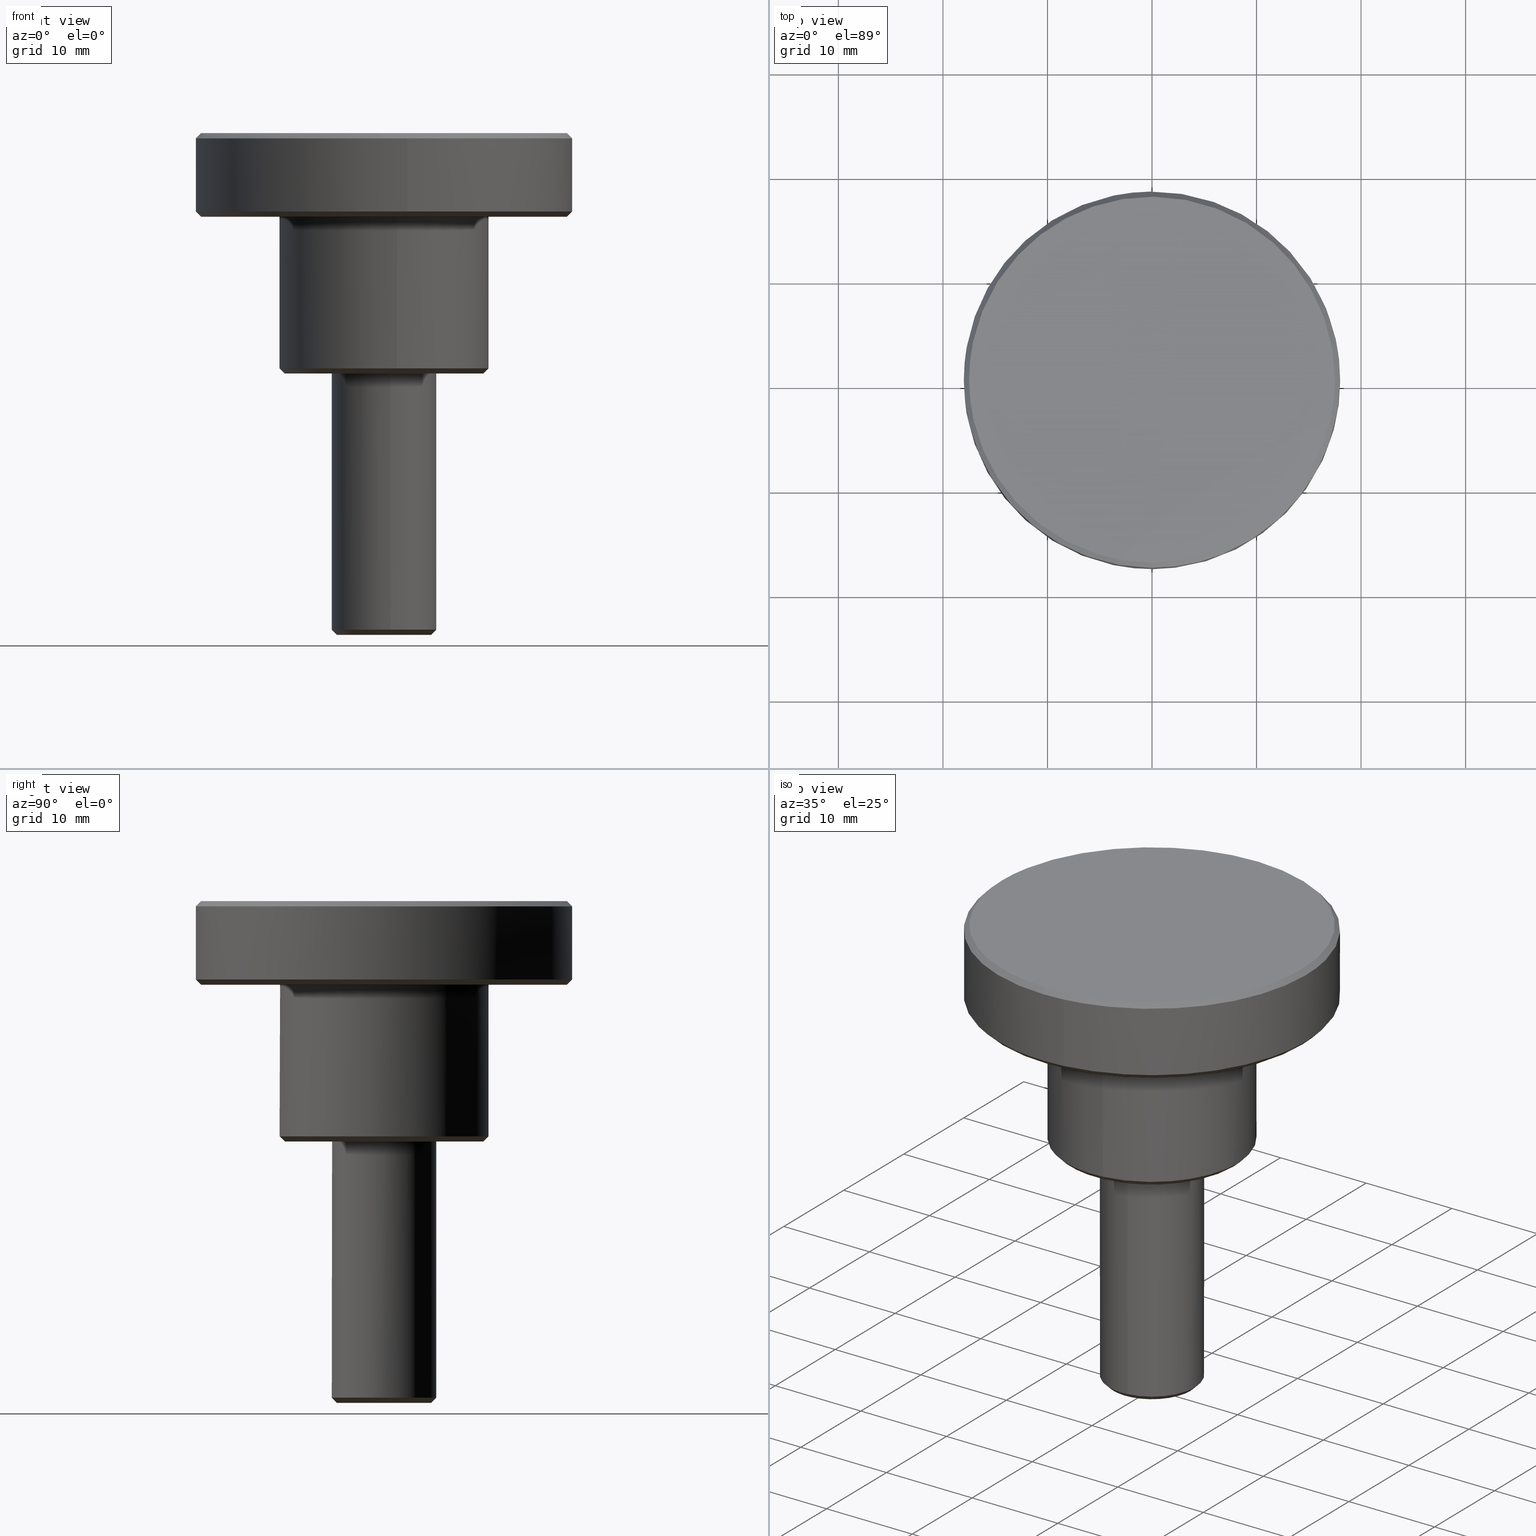
[diagram: canonical four-view strip — front | top / right | iso, engineering-drawing reading convention]
A machine part, canonical four-view strip (front | top / right | iso — engineering-drawing reading convention). The complete STEP part file that produces these views, byte-faithful:
ISO-10303-21;
HEADER;
/****************************************************************
 * Generated by software with PDE/Lib inside                    *
 * PDElib Version 4.4.1-0003, patched  Thursday August 19 11:58 *
 * International Technegroup Inc. (www.iti-oh.com)              *
 ****************************************************************/
FILE_DESCRIPTION((''),'2;1');
FILE_NAME('','2005-07-15T10:52:41',(''),(''),'','CADfix','');
FILE_SCHEMA(('AUTOMOTIVE_DESIGN'));
ENDSEC;
DATA;
#5=APPLICATION_CONTEXT('automotive design');
#6=APPLICATION_PROTOCOL_DEFINITION('Draft International Standard','automotive_design',1998,#5);
#7=PRODUCT_CONTEXT('None',#5,'mechanical');
#8=PRODUCT('knob','','None',(#7));
#9=PRODUCT_RELATED_PRODUCT_CATEGORY('part','description',(#8));
#10=PRODUCT_DEFINITION_FORMATION('None','None',#8);
#11=PRODUCT_DEFINITION_CONTEXT('part definition',#5,'design');
#12=PRODUCT_DEFINITION('None','None',#10,#11);
#18=(NAMED_UNIT(*)PLANE_ANGLE_UNIT()SI_UNIT($,.RADIAN.));
#19=DIMENSIONAL_EXPONENTS(0.0,0.0,0.0,0.0,0.0,0.0,0.0);
#20=PLANE_ANGLE_MEASURE_WITH_UNIT(PLANE_ANGLE_MEASURE(0.017453292500000),#18);
#24=(CONVERSION_BASED_UNIT('DEGREE',#20)NAMED_UNIT(#19)PLANE_ANGLE_UNIT());
#28=(NAMED_UNIT(*)SI_UNIT($,.STERADIAN.)SOLID_ANGLE_UNIT());
#32=(LENGTH_UNIT()NAMED_UNIT(*)SI_UNIT(.MILLI.,.METRE.));
#34=UNCERTAINTY_MEASURE_WITH_UNIT(LENGTH_MEASURE(0.001000000000000),#32,'DISTANCE_ACCURACY_VALUE','');
#36=(GEOMETRIC_REPRESENTATION_CONTEXT(3)GLOBAL_UNCERTAINTY_ASSIGNED_CONTEXT((#34))GLOBAL_UNIT_ASSIGNED_CONTEXT((#24,#28,#32))REPRESENTATION_CONTEXT('None','None'));
#37=AXIS2_PLACEMENT_3D('',#38,#39,#40);
#38=CARTESIAN_POINT('',(0.0,0.0,0.0));
#39=DIRECTION('',(0.0,0.0,1.0));
#40=DIRECTION('',(1.0,0.0,0.0));
#41=ADVANCED_BREP_SHAPE_REPRESENTATION('',(#37,#1271),#36);
#42=PRODUCT_DEFINITION_SHAPE('','',#12);
#43=SHAPE_DEFINITION_REPRESENTATION(#42,#41);
#44=CARTESIAN_POINT('',(-1.813916751045586,-4.104553845459481,-25.012499999999999));
#45=CARTESIAN_POINT('',(-0.928656247279884,-4.495775137049067,-25.012500000000006));
#46=CARTESIAN_POINT('',(0.039160328048953,-4.487329129750467,-25.012499999999999));
#47=CARTESIAN_POINT('',(4.526489457799420,-4.448168801701514,-25.012499999999996));
#48=CARTESIAN_POINT('',(4.487329129750467,0.039160328048953,-25.012499999999999));
#49=CARTESIAN_POINT('',(4.448168801701514,4.526489457799420,-25.012499999999996));
#50=CARTESIAN_POINT('',(-0.039160328048953,4.487329129750467,-25.012499999999999));
#51=CARTESIAN_POINT('',(-2.026256170161696,-4.585038177925827,-24.487187500000001));
#52=CARTESIAN_POINT('',(-1.037365937508111,-5.022056335195220,-24.487187500000001));
#53=CARTESIAN_POINT('',(0.043744486227942,-5.012621627460064,-24.487187500000001));
#54=CARTESIAN_POINT('',(5.056366113688005,-4.968877141232122,-24.487187499999994));
#55=CARTESIAN_POINT('',(5.012621627460064,0.043744486227942,-24.487187500000001));
#56=CARTESIAN_POINT('',(4.968877141232122,5.056366113688005,-24.487187499999994));
#57=CARTESIAN_POINT('',(-0.043744486227942,5.012621627460064,-24.487187500000001));
#65=(BOUNDED_SURFACE()B_SPLINE_SURFACE(2,1,((#44,#51),(#45,#52),(#46,#53),(#47,#54),(#48,#55),(#49,#56),(#50,#57)),.UNSPECIFIED.,.F.,.F.,.U.)B_SPLINE_SURFACE_WITH_KNOTS((3,2,2,3),(2,2),(0.0,2.325539913909363,10.631039606442799,18.936539298976239),(0.0,1.0),.UNSPECIFIED.)GEOMETRIC_REPRESENTATION_ITEM()RATIONAL_B_SPLINE_SURFACE(((0.881905454174416,0.881905454174416),(0.917989898732233,0.917989898732233),(1.0,1.0),(0.707106781186548,0.707106781186548),(1.0,1.0),(0.707106781186548,0.707106781186548),(1.0,1.0)))REPRESENTATION_ITEM('')SURFACE());
#66=CARTESIAN_POINT('',(-2.021077159970501,-4.573319047855010,-24.499999999997190));
#67=VERTEX_POINT('',#66);
#68=CARTESIAN_POINT('',(0.620639597065468,-4.961331120833826,-24.500000000000000));
#69=VERTEX_POINT('',#68);
#70=CARTESIAN_POINT('',(-2.021077159970501,-4.573319047855010,-24.499999999997193));
#71=CARTESIAN_POINT('',(-1.055578086293674,-5.0,-24.500000000000000));
#72=CARTESIAN_POINT('',(0.0,-5.0,-24.500000000000000));
#73=CARTESIAN_POINT('',(0.311524219495223,-5.000000000000001,-24.500000000000007));
#74=CARTESIAN_POINT('',(0.620639597065468,-4.961331120833827,-24.499999999999996));
#82=(BOUNDED_CURVE()B_SPLINE_CURVE(2,(#70,#71,#72,#73,#74),.UNSPECIFIED.,.F.,.U.)B_SPLINE_CURVE_WITH_KNOTS((3,2,3),(0.181361578457885,0.250000000000000,0.271473900870564),.UNSPECIFIED.)CURVE()GEOMETRIC_REPRESENTATION_ITEM()RATIONAL_B_SPLINE_CURVE((0.883326595749721,0.919585087121021,1.0,0.974841760214158,0.954005484806229))REPRESENTATION_ITEM(''));
#83=EDGE_CURVE('',#67,#69,#82,.T.);
#84=ORIENTED_EDGE('',*,*,#83,.F.);
#85=CARTESIAN_POINT('',(-1.818969444047451,-4.115987143043999,-24.999999999990919));
#86=VERTEX_POINT('',#85);
#87=CARTESIAN_POINT('',(-1.818969444047451,-4.115987143043999,-24.999999999990919));
#88=CARTESIAN_POINT('',(-2.021077159970501,-4.573319047855010,-24.499999999997190));
#89=QUASI_UNIFORM_CURVE('',1,(#87,#88),.UNSPECIFIED.,.F.,.U.);
#90=EDGE_CURVE('',#86,#67,#89,.T.);
#91=ORIENTED_EDGE('',*,*,#90,.F.);
#92=CARTESIAN_POINT('',(4.500000000000000,0.0,-25.0));
#93=VERTEX_POINT('',#92);
#94=CARTESIAN_POINT('',(4.500000000000000,0.0,-25.0));
#95=CARTESIAN_POINT('',(4.500000000000000,-4.500000000000000,-25.000000000000004));
#96=CARTESIAN_POINT('',(0.0,-4.500000000000000,-25.0));
#97=CARTESIAN_POINT('',(-0.950020277745776,-4.500000000000000,-25.0));
#98=CARTESIAN_POINT('',(-1.818969444047451,-4.115987143043999,-24.999999999990909));
#106=(BOUNDED_CURVE()B_SPLINE_CURVE(2,(#94,#95,#96,#97,#98),.UNSPECIFIED.,.F.,.U.)B_SPLINE_CURVE_WITH_KNOTS((3,2,3),(0.500000000000000,0.750000000000000,0.818638421547528),.UNSPECIFIED.)CURVE()GEOMETRIC_REPRESENTATION_ITEM()RATIONAL_B_SPLINE_CURVE((1.0,0.707106781186547,1.0,0.919585087114680,0.883326595744002))REPRESENTATION_ITEM(''));
#107=EDGE_CURVE('',#93,#86,#106,.T.);
#108=ORIENTED_EDGE('',*,*,#107,.F.);
#109=CARTESIAN_POINT('',(-0.039269409835009,4.499828653800566,-24.999999999987399));
#110=VERTEX_POINT('',#109);
#111=CARTESIAN_POINT('',(-0.039269409835009,4.499828653800566,-24.999999999987395));
#112=CARTESIAN_POINT('',(-0.019635078785379,4.500000000000000,-25.000000000000004));
#113=CARTESIAN_POINT('',(0.0,4.500000000000000,-25.0));
#114=CARTESIAN_POINT('',(4.500000000000000,4.500000000000000,-25.000000000000004));
#115=CARTESIAN_POINT('',(4.500000000000000,0.0,-25.0));
#123=(BOUNDED_CURVE()B_SPLINE_CURVE(2,(#111,#112,#113,#114,#115),.UNSPECIFIED.,.F.,.U.)B_SPLINE_CURVE_WITH_KNOTS((3,2,3),(0.248460105657793,0.250000000000000,0.500000000000000),.UNSPECIFIED.)CURVE()GEOMETRIC_REPRESENTATION_ITEM()RATIONAL_B_SPLINE_CURVE((0.996414028083698,0.998195901557914,1.0,0.707106781186547,1.0))REPRESENTATION_ITEM(''));
#124=EDGE_CURVE('',#110,#93,#123,.T.);
#125=ORIENTED_EDGE('',*,*,#124,.F.);
#126=CARTESIAN_POINT('',(-0.043632677505370,4.999809615320709,-24.500000000000000));
#127=VERTEX_POINT('',#126);
#128=CARTESIAN_POINT('',(-0.039269409835009,4.499828653800566,-24.999999999987399));
#129=CARTESIAN_POINT('',(-0.043632677505370,4.999809615320709,-24.500000000000000));
#130=QUASI_UNIFORM_CURVE('',1,(#128,#129),.UNSPECIFIED.,.F.,.U.);
#131=EDGE_CURVE('',#110,#127,#130,.T.);
#132=ORIENTED_EDGE('',*,*,#131,.T.);
#133=CARTESIAN_POINT('',(5.0,0.0,-24.500000000000000));
#134=VERTEX_POINT('',#133);
#135=CARTESIAN_POINT('',(5.0,0.0,-24.500000000000000));
#136=CARTESIAN_POINT('',(5.000000000000001,5.000000000000001,-24.500000000000004));
#137=CARTESIAN_POINT('',(0.0,5.0,-24.500000000000000));
#138=CARTESIAN_POINT('',(-0.021816754130510,5.000000000000001,-24.500000000000004));
#139=CARTESIAN_POINT('',(-0.043632677505370,4.999809615320710,-24.500000000000007));
#147=(BOUNDED_CURVE()B_SPLINE_CURVE(2,(#135,#136,#137,#138,#139),.UNSPECIFIED.,.F.,.U.)B_SPLINE_CURVE_WITH_KNOTS((3,2,3),(0.500000000000000,0.750000000000000,0.751539894336890),.UNSPECIFIED.)CURVE()GEOMETRIC_REPRESENTATION_ITEM()RATIONAL_B_SPLINE_CURVE((1.0,0.707106781186548,1.0,0.998195901564143,0.996414028096003))REPRESENTATION_ITEM(''));
#148=EDGE_CURVE('',#134,#127,#147,.T.);
#149=ORIENTED_EDGE('',*,*,#148,.F.);
#150=CARTESIAN_POINT('',(0.620639597065468,-4.961331120833827,-24.499999999999996));
#151=CARTESIAN_POINT('',(5.000000000000001,-4.413493741868265,-24.499999999999996));
#152=CARTESIAN_POINT('',(5.0,0.0,-24.500000000000000));
#160=(BOUNDED_CURVE()B_SPLINE_CURVE(2,(#150,#151,#152),.UNSPECIFIED.,.F.,.U.)B_SPLINE_CURVE_WITH_KNOTS((3,3),(0.271473900870564,0.500000000000000),.UNSPECIFIED.)CURVE()GEOMETRIC_REPRESENTATION_ITEM()RATIONAL_B_SPLINE_CURVE((0.954005484806229,0.732265020972389,1.0))REPRESENTATION_ITEM(''));
#161=EDGE_CURVE('',#69,#134,#160,.T.);
#162=ORIENTED_EDGE('',*,*,#161,.F.);
#163=EDGE_LOOP('',(#84,#91,#108,#125,#132,#149,#162));
#164=FACE_OUTER_BOUND('',#163,.T.);
#165=ADVANCED_FACE('',(#164),#65,.T.);
#166=CARTESIAN_POINT('',(-0.039160328048953,4.487329129750467,-25.012499999999999));
#167=CARTESIAN_POINT('',(-4.526489457799420,4.448168801701514,-25.012499999999996));
#168=CARTESIAN_POINT('',(-4.487329129750467,-0.039160328048953,-25.012499999999999));
#169=CARTESIAN_POINT('',(-4.462063944610639,-2.934263788488800,-25.012500000000003));
#170=CARTESIAN_POINT('',(-1.813916751045586,-4.104553845459481,-25.012499999999999));
#171=CARTESIAN_POINT('',(-0.043744486227942,5.012621627460064,-24.487187500000001));
#172=CARTESIAN_POINT('',(-5.056366113688005,4.968877141232122,-24.487187499999994));
#173=CARTESIAN_POINT('',(-5.012621627460064,-0.043744486227942,-24.487187500000001));
#174=CARTESIAN_POINT('',(-4.984398867374551,-3.277752467350163,-24.487187499999994));
#175=CARTESIAN_POINT('',(-2.026256170161696,-4.585038177925827,-24.487187500000001));
#183=(BOUNDED_SURFACE()B_SPLINE_SURFACE(2,1,((#166,#171),(#167,#172),(#168,#173),(#169,#174),(#170,#175)),.UNSPECIFIED.,.F.,.F.,.U.)B_SPLINE_SURFACE_WITH_KNOTS((3,2,3),(2,2),(0.0,8.305499692533436,14.285459471157511),(0.0,1.0),.UNSPECIFIED.)GEOMETRIC_REPRESENTATION_ITEM()RATIONAL_B_SPLINE_SURFACE(((1.0,1.0),(0.707106781186548,0.707106781186548),(1.0,1.0),(0.789116882454314,0.789116882454314),(0.881905454174416,0.881905454174416)))REPRESENTATION_ITEM('')SURFACE());
#184=CARTESIAN_POINT('',(-5.0,0.0,-24.500000000000000));
#185=VERTEX_POINT('',#184);
#186=CARTESIAN_POINT('',(-5.0,0.0,-24.500000000000000));
#187=CARTESIAN_POINT('',(-5.0,-3.256850012911415,-24.500000000000004));
#188=CARTESIAN_POINT('',(-2.021077159970501,-4.573319047855010,-24.499999999997193));
#196=(BOUNDED_CURVE()B_SPLINE_CURVE(2,(#186,#187,#188),.UNSPECIFIED.,.F.,.U.)B_SPLINE_CURVE_WITH_KNOTS((3,3),(0.0,0.181361578457885),.UNSPECIFIED.)CURVE()GEOMETRIC_REPRESENTATION_ITEM()RATIONAL_B_SPLINE_CURVE((1.0,0.787521694065526,0.883326595749721))REPRESENTATION_ITEM(''));
#197=EDGE_CURVE('',#185,#67,#196,.T.);
#198=ORIENTED_EDGE('',*,*,#197,.F.);
#199=CARTESIAN_POINT('',(-0.043632677505370,4.999809615320710,-24.500000000000007));
#200=CARTESIAN_POINT('',(-5.0,4.956556052921354,-24.500000000000004));
#201=CARTESIAN_POINT('',(-5.0,0.0,-24.500000000000000));
#209=(BOUNDED_CURVE()B_SPLINE_CURVE(2,(#199,#200,#201),.UNSPECIFIED.,.F.,.U.)B_SPLINE_CURVE_WITH_KNOTS((3,3),(0.751539894336890,1.0),.UNSPECIFIED.)CURVE()GEOMETRIC_REPRESENTATION_ITEM()RATIONAL_B_SPLINE_CURVE((0.996414028096003,0.708910879622404,1.0))REPRESENTATION_ITEM(''));
#210=EDGE_CURVE('',#127,#185,#209,.T.);
#211=ORIENTED_EDGE('',*,*,#210,.F.);
#212=ORIENTED_EDGE('',*,*,#131,.F.);
#213=CARTESIAN_POINT('',(-4.500000000000000,0.0,-25.0));
#214=VERTEX_POINT('',#213);
#215=CARTESIAN_POINT('',(-4.500000000000000,0.0,-25.0));
#216=CARTESIAN_POINT('',(-4.500000000000002,4.460900447494558,-25.000000000000004));
#217=CARTESIAN_POINT('',(-0.039269409835009,4.499828653800566,-24.999999999987395));
#225=(BOUNDED_CURVE()B_SPLINE_CURVE(2,(#215,#216,#217),.UNSPECIFIED.,.F.,.U.)B_SPLINE_CURVE_WITH_KNOTS((3,3),(0.0,0.248460105657793),.UNSPECIFIED.)CURVE()GEOMETRIC_REPRESENTATION_ITEM()RATIONAL_B_SPLINE_CURVE((1.0,0.708910879628634,0.996414028083698))REPRESENTATION_ITEM(''));
#226=EDGE_CURVE('',#214,#110,#225,.T.);
#227=ORIENTED_EDGE('',*,*,#226,.F.);
#228=CARTESIAN_POINT('',(-1.818969444047450,-4.115987143043999,-24.999999999990912));
#229=CARTESIAN_POINT('',(-4.500000000000001,-2.931165011509184,-24.999999999999996));
#230=CARTESIAN_POINT('',(-4.500000000000000,0.0,-25.0));
#238=(BOUNDED_CURVE()B_SPLINE_CURVE(2,(#228,#229,#230),.UNSPECIFIED.,.F.,.U.)B_SPLINE_CURVE_WITH_KNOTS((3,3),(0.818638421547528,1.0),.UNSPECIFIED.)CURVE()GEOMETRIC_REPRESENTATION_ITEM()RATIONAL_B_SPLINE_CURVE((0.883326595744002,0.787521694071868,1.0))REPRESENTATION_ITEM(''));
#239=EDGE_CURVE('',#86,#214,#238,.T.);
#240=ORIENTED_EDGE('',*,*,#239,.F.);
#241=ORIENTED_EDGE('',*,*,#90,.T.);
#242=EDGE_LOOP('',(#198,#211,#212,#227,#240,#241));
#243=FACE_OUTER_BOUND('',#242,.T.);
#244=ADVANCED_FACE('',(#243),#183,.T.);
#245=CARTESIAN_POINT('',(-17.036639953710658,-3.945320688819989,23.012499999999999));
#246=CARTESIAN_POINT('',(-17.504948331500820,-1.923076656205386,23.012500000000003));
#247=CARTESIAN_POINT('',(-17.486834129584739,0.152605289527814,23.012499999999999));
#248=CARTESIAN_POINT('',(-17.334228840056934,17.639439419112552,23.012500000000006));
#249=CARTESIAN_POINT('',(0.152605289527814,17.486834129584739,23.012499999999999));
#250=CARTESIAN_POINT('',(17.639439419112552,17.334228840056934,23.012500000000006));
#251=CARTESIAN_POINT('',(17.486834129584739,-0.152605289527814,23.012499999999999));
#252=CARTESIAN_POINT('',(17.334228840056934,-17.639439419112552,23.012500000000006));
#253=CARTESIAN_POINT('',(-0.152605289527814,-17.486834129584739,23.012499999999999));
#254=CARTESIAN_POINT('',(-17.548408927302248,-4.063835415015588,22.487187499999994));
#255=CARTESIAN_POINT('',(-18.030784967405925,-1.980844559334066,22.487187499999990));
#256=CARTESIAN_POINT('',(-18.012126627294339,0.157189447706803,22.487187500000001));
#257=CARTESIAN_POINT('',(-17.854937179587541,18.169316075001138,22.487187500000005));
#258=CARTESIAN_POINT('',(0.157189447706803,18.012126627294339,22.487187500000001));
#259=CARTESIAN_POINT('',(18.169316075001138,17.854937179587541,22.487187500000005));
#260=CARTESIAN_POINT('',(18.012126627294339,-0.157189447706803,22.487187500000001));
#261=CARTESIAN_POINT('',(17.854937179587541,-18.169316075001138,22.487187500000005));
#262=CARTESIAN_POINT('',(-0.157189447706803,-18.012126627294339,22.487187500000001));
#270=(BOUNDED_SURFACE()B_SPLINE_SURFACE(2,1,((#245,#254),(#246,#255),(#247,#256),(#248,#257),(#249,#258),(#250,#259),(#251,#260),(#252,#261),(#253,#262)),.UNSPECIFIED.,.F.,.F.,.U.)B_SPLINE_SURFACE_WITH_KNOTS((3,2,2,2,3),(2,2),(0.0,4.775136789749517,34.619741725683980,64.464346661618450,94.308951597552920),(0.0,1.0),.UNSPECIFIED.)GEOMETRIC_REPRESENTATION_ITEM()RATIONAL_B_SPLINE_SURFACE(((0.921270302782944,0.921270302782944),(0.953137084989848,0.953137084989848),(1.0,1.0),(0.707106781186548,0.707106781186548),(1.0,1.0),(0.707106781186548,0.707106781186548),(1.0,1.0),(0.707106781186548,0.707106781186548),(1.0,1.0)))REPRESENTATION_ITEM('')SURFACE());
#271=CARTESIAN_POINT('',(-17.535926757213939,-4.060944811943870,22.499999999999289));
#272=VERTEX_POINT('',#271);
#273=CARTESIAN_POINT('',(-18.0,0.0,22.500000000000000));
#274=VERTEX_POINT('',#273);
#275=CARTESIAN_POINT('',(-17.535926757213932,-4.060944811943870,22.499999999999297));
#276=CARTESIAN_POINT('',(-18.0,-2.056988892241602,22.500000000000007));
#277=CARTESIAN_POINT('',(-18.0,0.0,22.500000000000000));
#285=(BOUNDED_CURVE()B_SPLINE_CURVE(2,(#275,#276,#277),.UNSPECIFIED.,.F.,.U.)B_SPLINE_CURVE_WITH_KNOTS((3,3),(0.961422971784496,1.0),.UNSPECIFIED.)CURVE()GEOMETRIC_REPRESENTATION_ITEM()RATIONAL_B_SPLINE_CURVE((0.923556557442602,0.954804200134815,1.0))REPRESENTATION_ITEM(''));
#286=EDGE_CURVE('',#272,#274,#285,.T.);
#287=ORIENTED_EDGE('',*,*,#286,.F.);
#288=CARTESIAN_POINT('',(-17.048817680619969,-3.948140789431338,22.999999999994550));
#289=VERTEX_POINT('',#288);
#290=CARTESIAN_POINT('',(-17.048817680619969,-3.948140789431338,22.999999999994550));
#291=CARTESIAN_POINT('',(-17.535926757213939,-4.060944811943870,22.499999999999289));
#292=QUASI_UNIFORM_CURVE('',1,(#290,#291),.UNSPECIFIED.,.F.,.U.);
#293=EDGE_CURVE('',#289,#272,#292,.T.);
#294=ORIENTED_EDGE('',*,*,#293,.F.);
#295=CARTESIAN_POINT('',(-17.500000000000000,0.0,23.0));
#296=VERTEX_POINT('',#295);
#297=CARTESIAN_POINT('',(-17.500000000000000,0.0,23.0));
#298=CARTESIAN_POINT('',(-17.500000000000000,-1.999850311943583,22.999999999999993));
#299=CARTESIAN_POINT('',(-17.048817680619965,-3.948140789431339,22.999999999994554));
#307=(BOUNDED_CURVE()B_SPLINE_CURVE(2,(#297,#298,#299),.UNSPECIFIED.,.F.,.U.)B_SPLINE_CURVE_WITH_KNOTS((3,3),(0.500000000000000,0.538577028216278),.UNSPECIFIED.)CURVE()GEOMETRIC_REPRESENTATION_ITEM()RATIONAL_B_SPLINE_CURVE((1.0,0.954804200133908,0.923556557441348))REPRESENTATION_ITEM(''));
#308=EDGE_CURVE('',#296,#289,#307,.T.);
#309=ORIENTED_EDGE('',*,*,#308,.F.);
#310=CARTESIAN_POINT('',(17.500000000000000,0.0,23.0));
#311=VERTEX_POINT('',#310);
#312=CARTESIAN_POINT('',(17.500000000000000,0.0,23.0));
#313=CARTESIAN_POINT('',(17.499999999999996,17.499999999999996,22.999999999999993));
#314=CARTESIAN_POINT('',(0.0,17.500000000000000,23.0));
#315=CARTESIAN_POINT('',(-17.499999999999996,17.499999999999996,22.999999999999993));
#316=CARTESIAN_POINT('',(-17.500000000000000,0.0,23.0));
#324=(BOUNDED_CURVE()B_SPLINE_CURVE(2,(#312,#313,#314,#315,#316),.UNSPECIFIED.,.F.,.U.)B_SPLINE_CURVE_WITH_KNOTS((3,2,3),(0.0,0.250000000000000,0.500000000000000),.UNSPECIFIED.)CURVE()GEOMETRIC_REPRESENTATION_ITEM()RATIONAL_B_SPLINE_CURVE((1.0,0.707106781186548,1.0,0.707106781186548,1.0))REPRESENTATION_ITEM(''));
#325=EDGE_CURVE('',#311,#296,#324,.T.);
#326=ORIENTED_EDGE('',*,*,#325,.F.);
#327=CARTESIAN_POINT('',(-0.152714371270017,-17.499333653629179,22.999999999993420));
#328=VERTEX_POINT('',#327);
#329=CARTESIAN_POINT('',(-0.152714371270017,-17.499333653629179,22.999999999993424));
#330=CARTESIAN_POINT('',(-0.076358639410696,-17.500000000000004,22.999999999999996));
#331=CARTESIAN_POINT('',(0.0,-17.500000000000000,23.0));
#332=CARTESIAN_POINT('',(17.499999999999996,-17.499999999999996,22.999999999999993));
#333=CARTESIAN_POINT('',(17.500000000000000,0.0,23.0));
#341=(BOUNDED_CURVE()B_SPLINE_CURVE(2,(#329,#330,#331,#332,#333),.UNSPECIFIED.,.F.,.U.)B_SPLINE_CURVE_WITH_KNOTS((3,2,3),(0.748460105664038,0.750000000000000,1.0),.UNSPECIFIED.)CURVE()GEOMETRIC_REPRESENTATION_ITEM()RATIONAL_B_SPLINE_CURVE((0.996414028098150,0.998195901565230,1.0,0.707106781186548,1.0))REPRESENTATION_ITEM(''));
#342=EDGE_CURVE('',#328,#311,#341,.T.);
#343=ORIENTED_EDGE('',*,*,#342,.F.);
#344=CARTESIAN_POINT('',(-0.157077639033533,-17.999314615163069,22.499999999991470));
#345=VERTEX_POINT('',#344);
#346=CARTESIAN_POINT('',(-0.152714371270017,-17.499333653629179,22.999999999993420));
#347=CARTESIAN_POINT('',(-0.157077639033533,-17.999314615163069,22.499999999991470));
#348=QUASI_UNIFORM_CURVE('',1,(#346,#347),.UNSPECIFIED.,.F.,.U.);
#349=EDGE_CURVE('',#328,#345,#348,.T.);
#350=ORIENTED_EDGE('',*,*,#349,.T.);
#351=CARTESIAN_POINT('',(2.234292061420921,-17.860793346996822,22.499999999999961));
#352=VERTEX_POINT('',#351);
#353=CARTESIAN_POINT('',(2.234292061420921,-17.860793346996815,22.499999999999961));
#354=CARTESIAN_POINT('',(1.121482637498569,-17.999999999999993,22.500000000000000));
#355=CARTESIAN_POINT('',(0.0,-18.0,22.500000000000000));
#356=CARTESIAN_POINT('',(-0.078540314835342,-18.000000000000004,22.500000000000004));
#357=CARTESIAN_POINT('',(-0.157077639033533,-17.999314615163065,22.499999999991470));
#365=(BOUNDED_CURVE()B_SPLINE_CURVE(2,(#353,#354,#355,#356,#357),.UNSPECIFIED.,.F.,.U.)B_SPLINE_CURVE_WITH_KNOTS((3,2,3),(0.728526184109749,0.750000000000000,0.751539894336214),.UNSPECIFIED.)CURVE()GEOMETRIC_REPRESENTATION_ITEM()RATIONAL_B_SPLINE_CURVE((0.954005649720274,0.974841859774788,1.0,0.998195901564934,0.996414028097565))REPRESENTATION_ITEM(''));
#366=EDGE_CURVE('',#352,#345,#365,.T.);
#367=ORIENTED_EDGE('',*,*,#366,.F.);
#368=CARTESIAN_POINT('',(18.0,0.0,22.500000000000000));
#369=VERTEX_POINT('',#368);
#370=CARTESIAN_POINT('',(18.0,0.0,22.500000000000000));
#371=CARTESIAN_POINT('',(18.0,-15.888585539346550,22.500000000000004));
#372=CARTESIAN_POINT('',(2.234292061420921,-17.860793346996815,22.499999999999961));
#380=(BOUNDED_CURVE()B_SPLINE_CURVE(2,(#370,#371,#372),.UNSPECIFIED.,.F.,.U.)B_SPLINE_CURVE_WITH_KNOTS((3,3),(0.500000000000000,0.728526184109749),.UNSPECIFIED.)CURVE()GEOMETRIC_REPRESENTATION_ITEM()RATIONAL_B_SPLINE_CURVE((1.0,0.732264921411759,0.954005649720274))REPRESENTATION_ITEM(''));
#381=EDGE_CURVE('',#369,#352,#380,.T.);
#382=ORIENTED_EDGE('',*,*,#381,.F.);
#383=CARTESIAN_POINT('',(-0.157062445033259,17.999314747737738,22.500000000000011));
#384=VERTEX_POINT('',#383);
#385=CARTESIAN_POINT('',(-0.157062445033259,17.999314747737738,22.500000000000018));
#386=CARTESIAN_POINT('',(-0.078532717370039,17.999999999999996,22.499999999999996));
#387=CARTESIAN_POINT('',(0.0,18.0,22.500000000000000));
#388=CARTESIAN_POINT('',(18.000000000000007,18.000000000000007,22.500000000000004));
#389=CARTESIAN_POINT('',(18.0,0.0,22.500000000000000));
#397=(BOUNDED_CURVE()B_SPLINE_CURVE(2,(#385,#386,#387,#388,#389),.UNSPECIFIED.,.F.,.U.)B_SPLINE_CURVE_WITH_KNOTS((3,2,3),(0.248460254354164,0.250000000000000,0.500000000000000),.UNSPECIFIED.)CURVE()GEOMETRIC_REPRESENTATION_ITEM()RATIONAL_B_SPLINE_CURVE((0.996414372208968,0.998196075766549,1.0,0.707106781186547,1.0))REPRESENTATION_ITEM(''));
#398=EDGE_CURVE('',#384,#369,#397,.T.);
#399=ORIENTED_EDGE('',*,*,#398,.F.);
#400=CARTESIAN_POINT('',(-18.0,0.0,22.500000000000000));
#401=CARTESIAN_POINT('',(-18.0,17.843616853783441,22.500000000000007));
#402=CARTESIAN_POINT('',(-0.157062445033259,17.999314747737738,22.500000000000018));
#410=(BOUNDED_CURVE()B_SPLINE_CURVE(2,(#400,#401,#402),.UNSPECIFIED.,.F.,.U.)B_SPLINE_CURVE_WITH_KNOTS((3,3),(0.0,0.248460254354164),.UNSPECIFIED.)CURVE()GEOMETRIC_REPRESENTATION_ITEM()RATIONAL_B_SPLINE_CURVE((1.0,0.708910705419999,0.996414372208968))REPRESENTATION_ITEM(''));
#411=EDGE_CURVE('',#274,#384,#410,.T.);
#412=ORIENTED_EDGE('',*,*,#411,.F.);
#413=EDGE_LOOP('',(#287,#294,#309,#326,#343,#350,#367,#382,#399,#412));
#414=FACE_OUTER_BOUND('',#413,.T.);
#415=ADVANCED_FACE('',(#414),#270,.T.);
#416=CARTESIAN_POINT('',(-0.152605289527814,-17.486834129584739,23.012499999999999));
#417=CARTESIAN_POINT('',(-13.928556243240688,-17.366613226919718,23.012500000000003));
#418=CARTESIAN_POINT('',(-17.036639953710658,-3.945320688819989,23.012499999999999));
#419=CARTESIAN_POINT('',(-0.157189447706803,-18.012126627294339,22.487187500000001));
#420=CARTESIAN_POINT('',(-14.346960514950569,-17.888294371209376,22.487187500000001));
#421=CARTESIAN_POINT('',(-17.548408927302248,-4.063835415015588,22.487187499999994));
#429=(BOUNDED_SURFACE()B_SPLINE_SURFACE(2,1,((#416,#419),(#417,#420),(#418,#421)),.UNSPECIFIED.,.F.,.F.,.U.)B_SPLINE_SURFACE_WITH_KNOTS((3,3),(2,2),(0.0,24.959837908595269),(0.0,1.0),.UNSPECIFIED.)GEOMETRIC_REPRESENTATION_ITEM()RATIONAL_B_SPLINE_SURFACE(((1.0,1.0),(0.753969696196700,0.753969696196700),(0.921270302782944,0.921270302782944)))REPRESENTATION_ITEM('')SURFACE());
#430=CARTESIAN_POINT('',(-0.157077639033533,-17.999314615163069,22.499999999991463));
#431=CARTESIAN_POINT('',(-14.336755532726542,-17.875570440761891,22.499999999999993));
#432=CARTESIAN_POINT('',(-17.535926757213936,-4.060944811943870,22.499999999999289));
#440=(BOUNDED_CURVE()B_SPLINE_CURVE(2,(#430,#431,#432),.UNSPECIFIED.,.F.,.U.)B_SPLINE_CURVE_WITH_KNOTS((3,3),(0.751539894336215,0.961422971784496),.UNSPECIFIED.)CURVE()GEOMETRIC_REPRESENTATION_ITEM()RATIONAL_B_SPLINE_CURVE((0.996414028097565,0.753549905436935,0.923556557442601))REPRESENTATION_ITEM(''));
#441=EDGE_CURVE('',#345,#272,#440,.T.);
#442=ORIENTED_EDGE('',*,*,#441,.F.);
#443=ORIENTED_EDGE('',*,*,#349,.F.);
#444=CARTESIAN_POINT('',(-17.048817680619962,-3.948140789431338,22.999999999994554));
#445=CARTESIAN_POINT('',(-13.938512323412423,-17.379026817427835,22.999999999999993));
#446=CARTESIAN_POINT('',(-0.152714371270017,-17.499333653629183,22.999999999993420));
#454=(BOUNDED_CURVE()B_SPLINE_CURVE(2,(#444,#445,#446),.UNSPECIFIED.,.F.,.U.)B_SPLINE_CURVE_WITH_KNOTS((3,3),(0.538577028216277,0.748460105664038),.UNSPECIFIED.)CURVE()GEOMETRIC_REPRESENTATION_ITEM()RATIONAL_B_SPLINE_CURVE((0.923556557441349,0.753549905437624,0.996414028098151))REPRESENTATION_ITEM(''));
#455=EDGE_CURVE('',#289,#328,#454,.T.);
#456=ORIENTED_EDGE('',*,*,#455,.F.);
#457=ORIENTED_EDGE('',*,*,#293,.T.);
#458=EDGE_LOOP('',(#442,#443,#456,#457));
#459=FACE_OUTER_BOUND('',#458,.T.);
#460=ADVANCED_FACE('',(#459),#429,.T.);
#461=CARTESIAN_POINT('',(14.319921146030703,-10.037555211378052,14.987499999999999));
#462=CARTESIAN_POINT('',(17.535725391208214,-5.449778383031156,14.987499999999997));
#463=CARTESIAN_POINT('',(17.486834129584690,0.152605289527813,14.987500000000001));
#464=CARTESIAN_POINT('',(17.334228840056877,17.639439419112509,14.987499999999997));
#465=CARTESIAN_POINT('',(-0.152605289527813,17.486834129584690,14.987500000000001));
#466=CARTESIAN_POINT('',(-17.639439419112509,17.334228840056877,14.987499999999997));
#467=CARTESIAN_POINT('',(-17.486834129584690,-0.152605289527813,14.987500000000001));
#468=CARTESIAN_POINT('',(-17.334228840056877,-17.639439419112509,14.987499999999997));
#469=CARTESIAN_POINT('',(0.152605289527813,-17.486834129584690,14.987500000000001));
#470=CARTESIAN_POINT('',(14.750081750864162,-10.339076482113015,15.512812500000001));
#471=CARTESIAN_POINT('',(18.062486548867700,-5.613485985995352,15.512812500000004));
#472=CARTESIAN_POINT('',(18.012126627294400,0.157189447706803,15.512812500000001));
#473=CARTESIAN_POINT('',(17.854937179587598,18.169316075001191,15.512812499999999));
#474=CARTESIAN_POINT('',(-0.157189447706803,18.012126627294400,15.512812500000001));
#475=CARTESIAN_POINT('',(-18.169316075001191,17.854937179587598,15.512812499999999));
#476=CARTESIAN_POINT('',(-18.012126627294400,-0.157189447706803,15.512812500000001));
#477=CARTESIAN_POINT('',(-17.854937179587598,-18.169316075001191,15.512812499999999));
#478=CARTESIAN_POINT('',(0.157189447706803,-18.012126627294400,15.512812500000001));
#486=(BOUNDED_SURFACE()B_SPLINE_SURFACE(2,1,((#461,#470),(#462,#471),(#463,#472),(#464,#473),(#465,#474),(#466,#475),(#467,#476),(#468,#477),(#469,#478)),.UNSPECIFIED.,.F.,.F.,.U.)B_SPLINE_SURFACE_WITH_KNOTS((3,2,2,2,3),(2,2),(0.0,11.937841974373820,41.782446910308373,71.627051846242921,101.471656782177500),(0.0,1.0),.UNSPECIFIED.)GEOMETRIC_REPRESENTATION_ITEM()RATIONAL_B_SPLINE_SURFACE(((0.859411254969543,0.859411254969543),(0.882842712474619,0.882842712474619),(1.0,1.0),(0.707106781186548,0.707106781186548),(1.0,1.0),(0.707106781186548,0.707106781186548),(1.0,1.0),(0.707106781186548,0.707106781186548),(1.0,1.0)))REPRESENTATION_ITEM('')SURFACE());
#487=CARTESIAN_POINT('',(17.500000000000000,0.0,15.0));
#488=VERTEX_POINT('',#487);
#489=CARTESIAN_POINT('',(14.330156972432810,-10.044730018544760,15.000000000000540));
#490=VERTEX_POINT('',#489);
#491=CARTESIAN_POINT('',(17.500000000000000,0.0,15.0));
#492=CARTESIAN_POINT('',(17.499999999999996,-5.522523042440245,15.000000000000004));
#493=CARTESIAN_POINT('',(14.330156972432809,-10.044730018544755,15.000000000000544));
#501=(BOUNDED_CURVE()B_SPLINE_CURVE(2,(#491,#492,#493),.UNSPECIFIED.,.F.,.U.)B_SPLINE_CURVE_WITH_KNOTS((3,3),(0.0,0.098673726203091),.UNSPECIFIED.)CURVE()GEOMETRIC_REPRESENTATION_ITEM()RATIONAL_B_SPLINE_CURVE((1.0,0.884396538880238,0.860049271925764))REPRESENTATION_ITEM(''));
#502=EDGE_CURVE('',#488,#490,#501,.T.);
#503=ORIENTED_EDGE('',*,*,#502,.F.);
#504=CARTESIAN_POINT('',(-17.500000000000000,0.0,15.0));
#505=VERTEX_POINT('',#504);
#506=CARTESIAN_POINT('',(-17.500000000000000,0.0,15.0));
#507=CARTESIAN_POINT('',(-17.499999999999996,17.499999999999996,14.999999999999995));
#508=CARTESIAN_POINT('',(0.0,17.500000000000000,15.0));
#509=CARTESIAN_POINT('',(17.499999999999996,17.499999999999996,14.999999999999995));
#510=CARTESIAN_POINT('',(17.500000000000000,0.0,15.0));
#518=(BOUNDED_CURVE()B_SPLINE_CURVE(2,(#506,#507,#508,#509,#510),.UNSPECIFIED.,.F.,.U.)B_SPLINE_CURVE_WITH_KNOTS((3,2,3),(0.500000000000000,0.750000000000000,1.0),.UNSPECIFIED.)CURVE()GEOMETRIC_REPRESENTATION_ITEM()RATIONAL_B_SPLINE_CURVE((1.0,0.707106781186548,1.0,0.707106781186548,1.0))REPRESENTATION_ITEM(''));
#519=EDGE_CURVE('',#505,#488,#518,.T.);
#520=ORIENTED_EDGE('',*,*,#519,.F.);
#521=CARTESIAN_POINT('',(0.152714371270018,-17.499333653629169,15.000000000006590));
#522=VERTEX_POINT('',#521);
#523=CARTESIAN_POINT('',(0.152714371270018,-17.499333653629169,15.000000000006594));
#524=CARTESIAN_POINT('',(0.076358639410697,-17.500000000000004,14.999999999999996));
#525=CARTESIAN_POINT('',(0.0,-17.500000000000000,15.0));
#526=CARTESIAN_POINT('',(-17.499999999999996,-17.499999999999996,14.999999999999995));
#527=CARTESIAN_POINT('',(-17.500000000000000,0.0,15.0));
#535=(BOUNDED_CURVE()B_SPLINE_CURVE(2,(#523,#524,#525,#526,#527),.UNSPECIFIED.,.F.,.U.)B_SPLINE_CURVE_WITH_KNOTS((3,2,3),(0.248460105664038,0.250000000000000,0.500000000000000),.UNSPECIFIED.)CURVE()GEOMETRIC_REPRESENTATION_ITEM()RATIONAL_B_SPLINE_CURVE((0.996414028098150,0.998195901565230,1.0,0.707106781186548,1.0))REPRESENTATION_ITEM(''));
#536=EDGE_CURVE('',#522,#505,#535,.T.);
#537=ORIENTED_EDGE('',*,*,#536,.F.);
#538=CARTESIAN_POINT('',(0.157077638971129,-17.999314615155150,15.500000000000041));
#539=VERTEX_POINT('',#538);
#540=CARTESIAN_POINT('',(0.152714371270018,-17.499333653629169,15.000000000006590));
#541=CARTESIAN_POINT('',(0.157077638971129,-17.999314615155150,15.500000000000041));
#542=QUASI_UNIFORM_CURVE('',1,(#540,#541),.UNSPECIFIED.,.F.,.U.);
#543=EDGE_CURVE('',#522,#539,#542,.T.);
#544=ORIENTED_EDGE('',*,*,#543,.T.);
#545=CARTESIAN_POINT('',(-18.0,0.0,15.500000000000000));
#546=VERTEX_POINT('',#545);
#547=CARTESIAN_POINT('',(-18.0,0.0,15.500000000000000));
#548=CARTESIAN_POINT('',(-18.000000000000007,-18.000000000000007,15.500000000000005));
#549=CARTESIAN_POINT('',(0.0,-18.0,15.500000000000000));
#550=CARTESIAN_POINT('',(0.078540314773029,-17.999999999999996,15.499999999999993));
#551=CARTESIAN_POINT('',(0.157077638971129,-17.999314615155146,15.500000000000041));
#559=(BOUNDED_CURVE()B_SPLINE_CURVE(2,(#547,#548,#549,#550,#551),.UNSPECIFIED.,.F.,.U.)B_SPLINE_CURVE_WITH_KNOTS((3,2,3),(0.0,0.250000000000000,0.251539894334995),.UNSPECIFIED.)CURVE()GEOMETRIC_REPRESENTATION_ITEM()RATIONAL_B_SPLINE_CURVE((1.0,0.707106781186547,1.0,0.998195901566363,0.996414028100388))REPRESENTATION_ITEM(''));
#560=EDGE_CURVE('',#546,#539,#559,.T.);
#561=ORIENTED_EDGE('',*,*,#560,.F.);
#562=CARTESIAN_POINT('',(-0.157061939083980,17.999314752152220,15.500000000000000));
#563=VERTEX_POINT('',#562);
#564=CARTESIAN_POINT('',(-0.157061939083980,17.999314752152223,15.500000000000000));
#565=CARTESIAN_POINT('',(-18.0,17.843617355375248,15.500000000000004));
#566=CARTESIAN_POINT('',(-18.0,0.0,15.500000000000000));
#574=(BOUNDED_CURVE()B_SPLINE_CURVE(2,(#564,#565,#566),.UNSPECIFIED.,.F.,.U.)B_SPLINE_CURVE_WITH_KNOTS((3,3),(0.751539740694573,1.0),.UNSPECIFIED.)CURVE()GEOMETRIC_REPRESENTATION_ITEM()RATIONAL_B_SPLINE_CURVE((0.996414383667592,0.708910699619233,1.0))REPRESENTATION_ITEM(''));
#575=EDGE_CURVE('',#563,#546,#574,.T.);
#576=ORIENTED_EDGE('',*,*,#575,.F.);
#577=CARTESIAN_POINT('',(18.0,0.0,15.500000000000000));
#578=VERTEX_POINT('',#577);
#579=CARTESIAN_POINT('',(18.0,0.0,15.500000000000000));
#580=CARTESIAN_POINT('',(18.000000000000007,18.000000000000007,15.500000000000005));
#581=CARTESIAN_POINT('',(0.0,18.0,15.500000000000000));
#582=CARTESIAN_POINT('',(-0.078532464380953,18.000000000000004,15.500000000000002));
#583=CARTESIAN_POINT('',(-0.157061939083980,17.999314752152223,15.500000000000000));
#591=(BOUNDED_CURVE()B_SPLINE_CURVE(2,(#579,#580,#581,#582,#583),.UNSPECIFIED.,.F.,.U.)B_SPLINE_CURVE_WITH_KNOTS((3,2,3),(0.500000000000000,0.750000000000000,0.751539740694573),.UNSPECIFIED.)CURVE()GEOMETRIC_REPRESENTATION_ITEM()RATIONAL_B_SPLINE_CURVE((1.0,0.707106781186547,1.0,0.998196081567314,0.996414383667592))REPRESENTATION_ITEM(''));
#592=EDGE_CURVE('',#578,#563,#591,.T.);
#593=ORIENTED_EDGE('',*,*,#592,.F.);
#594=CARTESIAN_POINT('',(14.739590028793319,-10.331722304780641,15.500000000000121));
#595=VERTEX_POINT('',#594);
#596=CARTESIAN_POINT('',(14.739590028793319,-10.331722304780641,15.500000000000117));
#597=CARTESIAN_POINT('',(18.000000000000004,-5.680309415070633,15.500000000000002));
#598=CARTESIAN_POINT('',(18.0,0.0,15.500000000000000));
#606=(BOUNDED_CURVE()B_SPLINE_CURVE(2,(#596,#597,#598),.UNSPECIFIED.,.F.,.U.)B_SPLINE_CURVE_WITH_KNOTS((3,3),(0.401326273797075,0.500000000000000),.UNSPECIFIED.)CURVE()GEOMETRIC_REPRESENTATION_ITEM()RATIONAL_B_SPLINE_CURVE((0.860049271925846,0.884396538880431,1.0))REPRESENTATION_ITEM(''));
#607=EDGE_CURVE('',#595,#578,#606,.T.);
#608=ORIENTED_EDGE('',*,*,#607,.F.);
#609=CARTESIAN_POINT('',(14.330156972432810,-10.044730018544760,15.000000000000540));
#610=CARTESIAN_POINT('',(14.739590028793319,-10.331722304780641,15.500000000000121));
#611=QUASI_UNIFORM_CURVE('',1,(#609,#610),.UNSPECIFIED.,.F.,.U.);
#612=EDGE_CURVE('',#490,#595,#611,.T.);
#613=ORIENTED_EDGE('',*,*,#612,.F.);
#614=EDGE_LOOP('',(#503,#520,#537,#544,#561,#576,#593,#608,#613));
#615=FACE_OUTER_BOUND('',#614,.T.);
#616=ADVANCED_FACE('',(#615),#486,.T.);
#617=CARTESIAN_POINT('',(0.152605289527813,-17.486834129584690,14.987500000000001));
#618=CARTESIAN_POINT('',(9.153404521625713,-17.408285344675011,14.987500000000002));
#619=CARTESIAN_POINT('',(14.319921146030703,-10.037555211378052,14.987499999999999));
#620=CARTESIAN_POINT('',(0.157189447706803,-18.012126627294400,15.512812500000001));
#621=CARTESIAN_POINT('',(9.428366512348630,-17.931218290786557,15.512812500000008));
#622=CARTESIAN_POINT('',(14.750081750864162,-10.339076482113015,15.512812500000001));
#630=(BOUNDED_SURFACE()B_SPLINE_SURFACE(2,1,((#617,#620),(#618,#621),(#619,#622)),.UNSPECIFIED.,.F.,.F.,.U.)B_SPLINE_SURFACE_WITH_KNOTS((3,3),(2,2),(0.0,17.784708021925880),(0.0,1.0),.UNSPECIFIED.)GEOMETRIC_REPRESENTATION_ITEM()RATIONAL_B_SPLINE_SURFACE(((1.0,1.0),(0.824264068711928,0.824264068711928),(0.859411254969543,0.859411254969543)))REPRESENTATION_ITEM('')SURFACE());
#631=CARTESIAN_POINT('',(14.330156972432812,-10.044730018544756,15.000000000000535));
#632=CARTESIAN_POINT('',(9.159947341174370,-17.420728722283801,15.000000000000007));
#633=CARTESIAN_POINT('',(0.152714371270018,-17.499333653629169,15.000000000006599));
#641=(BOUNDED_CURVE()B_SPLINE_CURVE(2,(#631,#632,#633),.UNSPECIFIED.,.F.,.U.)B_SPLINE_CURVE_WITH_KNOTS((3,3),(0.098673726203091,0.248460105664038),.UNSPECIFIED.)CURVE()GEOMETRIC_REPRESENTATION_ITEM()RATIONAL_B_SPLINE_CURVE((0.860049271925764,0.823090203821112,0.996414028098150))REPRESENTATION_ITEM(''));
#642=EDGE_CURVE('',#490,#522,#641,.T.);
#643=ORIENTED_EDGE('',*,*,#642,.F.);
#644=ORIENTED_EDGE('',*,*,#612,.T.);
#645=CARTESIAN_POINT('',(2.234297702629474,-17.860792641313090,15.500000000000000));
#646=VERTEX_POINT('',#645);
#647=CARTESIAN_POINT('',(2.234297702629473,-17.860792641313086,15.499999999999996));
#648=CARTESIAN_POINT('',(10.156770514425070,-16.869730085579977,15.500000000000002));
#649=CARTESIAN_POINT('',(14.739590028793319,-10.331722304780641,15.500000000000117));
#657=(BOUNDED_CURVE()B_SPLINE_CURVE(2,(#647,#648,#649),.UNSPECIFIED.,.F.,.U.)B_SPLINE_CURVE_WITH_KNOTS((3,3),(0.271473869155912,0.401326273797074),.UNSPECIFIED.)CURVE()GEOMETRIC_REPRESENTATION_ITEM()RATIONAL_B_SPLINE_CURVE((0.954005546352132,0.828008816151515,0.860049271925846))REPRESENTATION_ITEM(''));
#658=EDGE_CURVE('',#646,#595,#657,.T.);
#659=ORIENTED_EDGE('',*,*,#658,.F.);
#660=CARTESIAN_POINT('',(0.157077638971128,-17.999314615155154,15.500000000000048));
#661=CARTESIAN_POINT('',(1.199699658568229,-17.990215790634277,15.500000000000005));
#662=CARTESIAN_POINT('',(2.234297702629474,-17.860792641313090,15.499999999999998));
#670=(BOUNDED_CURVE()B_SPLINE_CURVE(2,(#660,#661,#662),.UNSPECIFIED.,.F.,.U.)B_SPLINE_CURVE_WITH_KNOTS((3,3),(0.251539894334995,0.271473869155912),.UNSPECIFIED.)CURVE()GEOMETRIC_REPRESENTATION_ITEM()RATIONAL_B_SPLINE_CURVE((0.996414028100388,0.973347626726213,0.954005546352132))REPRESENTATION_ITEM(''));
#671=EDGE_CURVE('',#539,#646,#670,.T.);
#672=ORIENTED_EDGE('',*,*,#671,.F.);
#673=ORIENTED_EDGE('',*,*,#543,.F.);
#674=EDGE_LOOP('',(#643,#644,#659,#672,#673));
#675=FACE_OUTER_BOUND('',#674,.T.);
#676=ADVANCED_FACE('',(#675),#630,.T.);
#677=CARTESIAN_POINT('',(-3.834993910984958,-8.677872893325199,-0.012499999999999));
#678=CARTESIAN_POINT('',(-1.963370728928781,-9.504995345460285,-0.012499999999999));
#679=CARTESIAN_POINT('',(0.082793005540822,-9.487138745071324,-0.012499999999999));
#680=CARTESIAN_POINT('',(9.569931750612147,-9.404345739530502,-0.012499999999999));
#681=CARTESIAN_POINT('',(9.487138745071324,0.082793005540822,-0.012499999999999));
#682=CARTESIAN_POINT('',(9.404345739530502,9.569931750612147,-0.012499999999999));
#683=CARTESIAN_POINT('',(-0.082793005540822,9.487138745071324,-0.012499999999999));
#684=CARTESIAN_POINT('',(-4.047333330101089,-9.158357225791594,0.512812499999944));
#685=CARTESIAN_POINT('',(-2.072080419157019,-10.031276543606490,0.512812499999944));
#686=CARTESIAN_POINT('',(0.087377163719812,-10.012431242780970,0.512812499999944));
#687=CARTESIAN_POINT('',(10.099808406500783,-9.925054079061161,0.512812499999944));
#688=CARTESIAN_POINT('',(10.012431242780970,0.087377163719812,0.512812499999944));
#689=CARTESIAN_POINT('',(9.925054079061161,10.099808406500783,0.512812499999944));
#690=CARTESIAN_POINT('',(-0.087377163719812,10.012431242780970,0.512812499999944));
#698=(BOUNDED_SURFACE()B_SPLINE_SURFACE(2,1,((#677,#684),(#678,#685),(#679,#686),(#680,#687),(#681,#688),(#682,#689),(#683,#690)),.UNSPECIFIED.,.F.,.F.,.U.)B_SPLINE_SURFACE_WITH_KNOTS((3,2,2,3),(2,2),(0.0,4.645135863198720,21.234906803194139,37.824677743189568),(0.0,1.0),.UNSPECIFIED.)GEOMETRIC_REPRESENTATION_ITEM()RATIONAL_B_SPLINE_SURFACE(((0.881905454174416,0.881905454174416),(0.917989898732233,0.917989898732233),(1.0,1.0),(0.707106781186548,0.707106781186548),(1.0,1.0),(0.707106781186548,0.707106781186548),(1.0,1.0)))REPRESENTATION_ITEM('')SURFACE());
#699=CARTESIAN_POINT('',(-4.042154319910639,-9.146638095720460,0.500000000002798));
#700=VERTEX_POINT('',#699);
#701=CARTESIAN_POINT('',(1.241265795595685,-9.922663917742991,0.499999999999938));
#702=VERTEX_POINT('',#701);
#703=CARTESIAN_POINT('',(-4.042154319910640,-9.146638095720460,0.500000000002798));
#704=CARTESIAN_POINT('',(-2.111156172553931,-10.000000000000002,0.499999999999945));
#705=CARTESIAN_POINT('',(0.0,-10.0,0.499999999999945));
#706=CARTESIAN_POINT('',(0.623042079473550,-10.0,0.499999999999945));
#707=CARTESIAN_POINT('',(1.241265795595685,-9.922663917742991,0.499999999999938));
#715=(BOUNDED_CURVE()B_SPLINE_CURVE(2,(#703,#704,#705,#706,#707),.UNSPECIFIED.,.F.,.U.)B_SPLINE_CURVE_WITH_KNOTS((3,2,3),(0.181361578458884,0.250000000000000,0.271473687198623),.UNSPECIFIED.)CURVE()GEOMETRIC_REPRESENTATION_ITEM()RATIONAL_B_SPLINE_CURVE((0.883326595750776,0.919585087122192,1.0,0.974842010546408,0.954005899461398))REPRESENTATION_ITEM(''));
#716=EDGE_CURVE('',#700,#702,#715,.T.);
#717=ORIENTED_EDGE('',*,*,#716,.F.);
#718=CARTESIAN_POINT('',(-3.840046603930024,-8.689306190929296,4.038215E-012));
#719=VERTEX_POINT('',#718);
#720=CARTESIAN_POINT('',(-3.840046603930024,-8.689306190929296,4.038215E-012));
#721=CARTESIAN_POINT('',(-4.042154319910639,-9.146638095720460,0.500000000002798));
#722=QUASI_UNIFORM_CURVE('',1,(#720,#721),.UNSPECIFIED.,.F.,.U.);
#723=EDGE_CURVE('',#719,#700,#722,.T.);
#724=ORIENTED_EDGE('',*,*,#723,.F.);
#725=CARTESIAN_POINT('',(9.500000000000000,0.0,0.0));
#726=VERTEX_POINT('',#725);
#727=CARTESIAN_POINT('',(9.500000000000000,0.0,0.0));
#728=CARTESIAN_POINT('',(9.500000000000000,-9.500000000000000,0.0));
#729=CARTESIAN_POINT('',(0.0,-9.500000000000000,0.0));
#730=CARTESIAN_POINT('',(-2.005598363942649,-9.500000000000000,0.0));
#731=CARTESIAN_POINT('',(-3.840046603930024,-8.689306190929296,4.038215E-012));
#739=(BOUNDED_CURVE()B_SPLINE_CURVE(2,(#727,#728,#729,#730,#731),.UNSPECIFIED.,.F.,.U.)B_SPLINE_CURVE_WITH_KNOTS((3,2,3),(0.500000000000000,0.750000000000000,0.818638421541633),.UNSPECIFIED.)CURVE()GEOMETRIC_REPRESENTATION_ITEM()RATIONAL_B_SPLINE_CURVE((1.0,0.707106781186548,1.0,0.919585087121586,0.883326595750231))REPRESENTATION_ITEM(''));
#740=EDGE_CURVE('',#726,#719,#739,.T.);
#741=ORIENTED_EDGE('',*,*,#740,.F.);
#742=CARTESIAN_POINT('',(-0.082902087248873,9.499638269111445,1.942057E-012));
#743=VERTEX_POINT('',#742);
#744=CARTESIAN_POINT('',(-0.082902087248873,9.499638269111445,1.942057E-012));
#745=CARTESIAN_POINT('',(-0.041451832810970,9.500000000000002,0.0));
#746=CARTESIAN_POINT('',(0.0,9.500000000000000,0.0));
#747=CARTESIAN_POINT('',(9.500000000000000,9.500000000000000,0.0));
#748=CARTESIAN_POINT('',(9.500000000000000,0.0,0.0));
#756=(BOUNDED_CURVE()B_SPLINE_CURVE(2,(#744,#745,#746,#747,#748),.UNSPECIFIED.,.F.,.U.)B_SPLINE_CURVE_WITH_KNOTS((3,2,3),(0.248460105664482,0.250000000000000,0.500000000000000),.UNSPECIFIED.)CURVE()GEOMETRIC_REPRESENTATION_ITEM()RATIONAL_B_SPLINE_CURVE((0.996414028099178,0.998195901565751,1.0,0.707106781186548,1.0))REPRESENTATION_ITEM(''));
#757=EDGE_CURVE('',#743,#726,#756,.T.);
#758=ORIENTED_EDGE('',*,*,#757,.F.);
#759=CARTESIAN_POINT('',(-0.087262114092629,9.999619258921394,0.499999999998912));
#760=VERTEX_POINT('',#759);
#761=CARTESIAN_POINT('',(-0.082902087248873,9.499638269111445,1.942057E-012));
#762=CARTESIAN_POINT('',(-0.087262114092629,9.999619258921394,0.499999999998912));
#763=QUASI_UNIFORM_CURVE('',1,(#761,#762),.UNSPECIFIED.,.F.,.U.);
#764=EDGE_CURVE('',#743,#760,#763,.T.);
#765=ORIENTED_EDGE('',*,*,#764,.T.);
#766=CARTESIAN_POINT('',(10.0,0.0,0.499999999999945));
#767=VERTEX_POINT('',#766);
#768=CARTESIAN_POINT('',(10.0,0.0,0.499999999999945));
#769=CARTESIAN_POINT('',(10.000000000000002,10.000000000000002,0.499999999999945));
#770=CARTESIAN_POINT('',(0.0,10.0,0.499999999999945));
#771=CARTESIAN_POINT('',(-0.043631887668918,10.0,0.499999999999945));
#772=CARTESIAN_POINT('',(-0.087262114092629,9.999619258921394,0.499999999998912));
#780=(BOUNDED_CURVE()B_SPLINE_CURVE(2,(#768,#769,#770,#771,#772),.UNSPECIFIED.,.F.,.U.)B_SPLINE_CURVE_WITH_KNOTS((3,2,3),(0.500000000000000,0.750000000000000,0.751539837246853),.UNSPECIFIED.)CURVE()GEOMETRIC_REPRESENTATION_ITEM()RATIONAL_B_SPLINE_CURVE((1.0,0.707106781186548,1.0,0.998195968449281,0.996414160218372))REPRESENTATION_ITEM(''));
#781=EDGE_CURVE('',#767,#760,#780,.T.);
#782=ORIENTED_EDGE('',*,*,#781,.F.);
#783=CARTESIAN_POINT('',(1.241265795595685,-9.922663917742991,0.499999999999938));
#784=CARTESIAN_POINT('',(10.000000000000002,-8.826998754570639,0.499999999999945));
#785=CARTESIAN_POINT('',(10.0,0.0,0.499999999999945));
#793=(BOUNDED_CURVE()B_SPLINE_CURVE(2,(#783,#784,#785),.UNSPECIFIED.,.F.,.U.)B_SPLINE_CURVE_WITH_KNOTS((3,3),(0.271473687198623,0.500000000000000),.UNSPECIFIED.)CURVE()GEOMETRIC_REPRESENTATION_ITEM()RATIONAL_B_SPLINE_CURVE((0.954005899461398,0.732264770640140,1.0))REPRESENTATION_ITEM(''));
#794=EDGE_CURVE('',#702,#767,#793,.T.);
#795=ORIENTED_EDGE('',*,*,#794,.F.);
#796=EDGE_LOOP('',(#717,#724,#741,#758,#765,#782,#795));
#797=FACE_OUTER_BOUND('',#796,.T.);
#798=ADVANCED_FACE('',(#797),#698,.T.);
#799=CARTESIAN_POINT('',(-0.082793005540822,9.487138745071324,-0.012499999999999));
#800=CARTESIAN_POINT('',(-9.569931750612147,9.404345739530502,-0.012499999999999));
#801=CARTESIAN_POINT('',(-9.487138745071324,-0.082793005540822,-0.012499999999999));
#802=CARTESIAN_POINT('',(-9.433722935820269,-6.203638483183840,-0.012499999999999));
#803=CARTESIAN_POINT('',(-3.834993910984958,-8.677872893325199,-0.012499999999999));
#804=CARTESIAN_POINT('',(-0.087377163719812,10.012431242780970,0.512812499999944));
#805=CARTESIAN_POINT('',(-10.099808406500783,9.925054079061161,0.512812499999944));
#806=CARTESIAN_POINT('',(-10.012431242780970,-0.087377163719812,0.512812499999944));
#807=CARTESIAN_POINT('',(-9.956057858584234,-6.547127162045237,0.512812499999944));
#808=CARTESIAN_POINT('',(-4.047333330101089,-9.158357225791594,0.512812499999944));
#816=(BOUNDED_SURFACE()B_SPLINE_SURFACE(2,1,((#799,#804),(#800,#805),(#801,#806),(#802,#807),(#803,#808)),.UNSPECIFIED.,.F.,.F.,.U.)B_SPLINE_SURFACE_WITH_KNOTS((3,2,3),(2,2),(0.0,16.589770939995429,28.534406016792129),(0.0,1.0),.UNSPECIFIED.)GEOMETRIC_REPRESENTATION_ITEM()RATIONAL_B_SPLINE_SURFACE(((1.0,1.0),(0.707106781186548,0.707106781186548),(1.0,1.0),(0.789116882454314,0.789116882454314),(0.881905454174416,0.881905454174416)))REPRESENTATION_ITEM('')SURFACE());
#817=CARTESIAN_POINT('',(-10.0,0.0,0.499999999999945));
#818=VERTEX_POINT('',#817);
#819=CARTESIAN_POINT('',(-10.0,0.0,0.499999999999945));
#820=CARTESIAN_POINT('',(-10.000000000000002,-6.513700025868396,0.499999999999945));
#821=CARTESIAN_POINT('',(-4.042154319910640,-9.146638095720460,0.500000000002798));
#829=(BOUNDED_CURVE()B_SPLINE_CURVE(2,(#819,#820,#821),.UNSPECIFIED.,.F.,.U.)B_SPLINE_CURVE_WITH_KNOTS((3,3),(0.0,0.181361578458884),.UNSPECIFIED.)CURVE()GEOMETRIC_REPRESENTATION_ITEM()RATIONAL_B_SPLINE_CURVE((1.0,0.787521694064356,0.883326595750776))REPRESENTATION_ITEM(''));
#830=EDGE_CURVE('',#818,#700,#829,.T.);
#831=ORIENTED_EDGE('',*,*,#830,.F.);
#832=CARTESIAN_POINT('',(-0.087262114092629,9.999619258921394,0.499999999998912));
#833=CARTESIAN_POINT('',(-10.0,9.913115318926637,0.499999999999945));
#834=CARTESIAN_POINT('',(-10.0,0.0,0.499999999999945));
#842=(BOUNDED_CURVE()B_SPLINE_CURVE(2,(#832,#833,#834),.UNSPECIFIED.,.F.,.U.)B_SPLINE_CURVE_WITH_KNOTS((3,3),(0.751539837246853,1.0),.UNSPECIFIED.)CURVE()GEOMETRIC_REPRESENTATION_ITEM()RATIONAL_B_SPLINE_CURVE((0.996414160218372,0.708910812737267,1.0))REPRESENTATION_ITEM(''));
#843=EDGE_CURVE('',#760,#818,#842,.T.);
#844=ORIENTED_EDGE('',*,*,#843,.F.);
#845=ORIENTED_EDGE('',*,*,#764,.F.);
#846=CARTESIAN_POINT('',(-9.500000000000000,0.0,0.0));
#847=VERTEX_POINT('',#846);
#848=CARTESIAN_POINT('',(-9.500000000000000,0.0,0.0));
#849=CARTESIAN_POINT('',(-9.499999999999998,9.417456500623933,0.0));
#850=CARTESIAN_POINT('',(-0.082902087248873,9.499638269111445,1.942057E-012));
#858=(BOUNDED_CURVE()B_SPLINE_CURVE(2,(#848,#849,#850),.UNSPECIFIED.,.F.,.U.)B_SPLINE_CURVE_WITH_KNOTS((3,3),(0.0,0.248460105664483),.UNSPECIFIED.)CURVE()GEOMETRIC_REPRESENTATION_ITEM()RATIONAL_B_SPLINE_CURVE((1.0,0.708910879620797,0.996414028099178))REPRESENTATION_ITEM(''));
#859=EDGE_CURVE('',#847,#743,#858,.T.);
#860=ORIENTED_EDGE('',*,*,#859,.F.);
#861=CARTESIAN_POINT('',(-3.840046603930024,-8.689306190929296,4.038215E-012));
#862=CARTESIAN_POINT('',(-9.500000000000000,-6.188015024552582,0.0));
#863=CARTESIAN_POINT('',(-9.500000000000000,0.0,0.0));
#871=(BOUNDED_CURVE()B_SPLINE_CURVE(2,(#861,#862,#863),.UNSPECIFIED.,.F.,.U.)B_SPLINE_CURVE_WITH_KNOTS((3,3),(0.818638421541633,1.0),.UNSPECIFIED.)CURVE()GEOMETRIC_REPRESENTATION_ITEM()RATIONAL_B_SPLINE_CURVE((0.883326595750230,0.787521694064961,1.0))REPRESENTATION_ITEM(''));
#872=EDGE_CURVE('',#719,#847,#871,.T.);
#873=ORIENTED_EDGE('',*,*,#872,.F.);
#874=ORIENTED_EDGE('',*,*,#723,.T.);
#875=EDGE_LOOP('',(#831,#844,#845,#860,#873,#874));
#876=FACE_OUTER_BOUND('',#875,.T.);
#877=ADVANCED_FACE('',(#876),#816,.T.);
#878=CARTESIAN_POINT('',(0.550584724480527,-4.970094667600610,-25.112500000000004));
#879=CARTESIAN_POINT('',(0.585526110235832,-4.965723658749079,-25.112500000000004));
#880=CARTESIAN_POINT('',(5.038664152512223,-4.408656290666105,-25.112500000000008));
#881=CARTESIAN_POINT('',(4.999809615320855,0.043632677491869,-25.112500000000001));
#882=CARTESIAN_POINT('',(4.956176937828985,5.043442292812725,-25.112500000000008));
#883=CARTESIAN_POINT('',(-0.077477367807833,4.999514257183047,-25.112499999999994));
#884=CARTESIAN_POINT('',(-0.111132795036137,4.999220550719187,-25.112500000000011));
#885=CARTESIAN_POINT('',(0.550584724480527,-4.970094667600610,0.627812499999997));
#886=CARTESIAN_POINT('',(0.585526110235832,-4.965723658749079,0.627812499999997));
#887=CARTESIAN_POINT('',(5.038664152512223,-4.408656290666105,0.627812499999997));
#888=CARTESIAN_POINT('',(4.999809615320855,0.043632677491869,0.627812499999997));
#889=CARTESIAN_POINT('',(4.956176937828985,5.043442292812725,0.627812499999997));
#890=CARTESIAN_POINT('',(-0.077477367807833,4.999514257183047,0.627812499999997));
#891=CARTESIAN_POINT('',(-0.111132795036137,4.999220550719187,0.627812499999998));
#899=(BOUNDED_SURFACE()B_SPLINE_SURFACE(2,1,((#878,#885),(#879,#886),(#880,#887),(#881,#888),(#882,#889),(#883,#890),(#884,#891)),.UNSPECIFIED.,.F.,.F.,.U.)B_SPLINE_SURFACE_WITH_KNOTS((3,1,2,1,3),(2,2),(0.0,0.079539199038746,7.701068746703693,15.985339994165590,16.064869047120521),(0.0,25.740312500000009),.UNSPECIFIED.)GEOMETRIC_REPRESENTATION_ITEM()RATIONAL_B_SPLINE_SURFACE(((0.961610505579537,0.961610505579537),(0.959248311885099,0.959248311885099),(0.730538238691624,0.730538238691624),(1.0,1.0),(0.707106781186548,0.707106781186548),(1.002811776632289,1.002811776632289),(1.005623553264577,1.005623553264577)))REPRESENTATION_ITEM('')SURFACE());
#900=ORIENTED_EDGE('',*,*,#161,.T.);
#901=ORIENTED_EDGE('',*,*,#148,.T.);
#902=CARTESIAN_POINT('',(-0.043632677514275,4.999809615320660,-1.110223E-016));
#903=VERTEX_POINT('',#902);
#904=CARTESIAN_POINT('',(-0.043632677505370,4.999809615320709,-24.500000000000000));
#905=CARTESIAN_POINT('',(-0.043632677514275,4.999809615320660,-1.110223E-016));
#906=QUASI_UNIFORM_CURVE('',1,(#904,#905),.UNSPECIFIED.,.F.,.U.);
#907=EDGE_CURVE('',#127,#903,#906,.T.);
#908=ORIENTED_EDGE('',*,*,#907,.T.);
#909=CARTESIAN_POINT('',(5.0,0.0,0.0));
#910=VERTEX_POINT('',#909);
#911=CARTESIAN_POINT('',(-0.043632677514275,4.999809615320660,-1.110223E-016));
#912=CARTESIAN_POINT('',(-0.021816754125914,5.0,0.0));
#913=CARTESIAN_POINT('',(0.0,5.0,0.0));
#914=CARTESIAN_POINT('',(5.000000000000001,5.000000000000001,0.0));
#915=CARTESIAN_POINT('',(5.0,0.0,0.0));
#923=(BOUNDED_CURVE()B_SPLINE_CURVE(2,(#911,#912,#913,#914,#915),.UNSPECIFIED.,.F.,.U.)B_SPLINE_CURVE_WITH_KNOTS((3,2,3),(0.248460105663434,0.250000000000000,0.500000000000000),.UNSPECIFIED.)CURVE()GEOMETRIC_REPRESENTATION_ITEM()RATIONAL_B_SPLINE_CURVE((0.996414028096752,0.998195901564523,1.0,0.707106781186548,1.0))REPRESENTATION_ITEM(''));
#924=EDGE_CURVE('',#903,#910,#923,.T.);
#925=ORIENTED_EDGE('',*,*,#924,.T.);
#926=CARTESIAN_POINT('',(0.620631029945107,-4.961332192525245,-1.160246E-016));
#927=VERTEX_POINT('',#926);
#928=CARTESIAN_POINT('',(5.0,0.0,0.0));
#929=CARTESIAN_POINT('',(4.999999999999999,-4.413501051839130,0.0));
#930=CARTESIAN_POINT('',(0.620631029945107,-4.961332192525245,-1.160246E-016));
#938=(BOUNDED_CURVE()B_SPLINE_CURVE(2,(#928,#929,#930),.UNSPECIFIED.,.F.,.U.)B_SPLINE_CURVE_WITH_KNOTS((3,3),(0.500000000000000,0.728526376293573),.UNSPECIFIED.)CURVE()GEOMETRIC_REPRESENTATION_ITEM()RATIONAL_B_SPLINE_CURVE((1.0,0.732264696254405,0.954006022675528))REPRESENTATION_ITEM(''));
#939=EDGE_CURVE('',#910,#927,#938,.T.);
#940=ORIENTED_EDGE('',*,*,#939,.T.);
#941=CARTESIAN_POINT('',(0.620639597065468,-4.961331120833826,-24.500000000000000));
#942=CARTESIAN_POINT('',(0.620631029945107,-4.961332192525245,-1.160246E-016));
#943=QUASI_UNIFORM_CURVE('',1,(#941,#942),.UNSPECIFIED.,.F.,.U.);
#944=EDGE_CURVE('',#69,#927,#943,.T.);
#945=ORIENTED_EDGE('',*,*,#944,.F.);
#946=EDGE_LOOP('',(#900,#901,#908,#925,#940,#945));
#947=FACE_OUTER_BOUND('',#946,.T.);
#948=ADVANCED_FACE('',(#947),#899,.T.);
#949=CARTESIAN_POINT('',(-0.043632677491869,4.999809615320855,-25.112500000000001));
#950=CARTESIAN_POINT('',(-5.043442292812725,4.956176937828985,-25.112500000000008));
#951=CARTESIAN_POINT('',(-4.999809615320855,-0.043632677491869,-25.112500000000001));
#952=CARTESIAN_POINT('',(-4.956176937828985,-5.043442292812725,-25.112500000000008));
#953=CARTESIAN_POINT('',(0.043632677491869,-4.999809615320855,-25.112500000000001));
#954=CARTESIAN_POINT('',(0.333250794790868,-4.997282156301378,-25.112500000000004));
#955=CARTESIAN_POINT('',(0.620640010399146,-4.961331069127693,-25.112500000000004));
#956=CARTESIAN_POINT('',(-0.043632677491869,4.999809615320855,0.627812499999997));
#957=CARTESIAN_POINT('',(-5.043442292812725,4.956176937828985,0.627812499999997));
#958=CARTESIAN_POINT('',(-4.999809615320855,-0.043632677491869,0.627812499999997));
#959=CARTESIAN_POINT('',(-4.956176937828985,-5.043442292812725,0.627812499999997));
#960=CARTESIAN_POINT('',(0.043632677491869,-4.999809615320855,0.627812499999997));
#961=CARTESIAN_POINT('',(0.333250794790868,-4.997282156301378,0.627812499999997));
#962=CARTESIAN_POINT('',(0.620640010399146,-4.961331069127693,0.627812499999997));
#970=(BOUNDED_SURFACE()B_SPLINE_SURFACE(2,1,((#949,#956),(#950,#957),(#951,#958),(#952,#959),(#953,#960),(#954,#961),(#955,#962)),.UNSPECIFIED.,.F.,.F.,.U.)B_SPLINE_SURFACE_WITH_KNOTS((3,2,2,3),(2,2),(0.0,8.284271247461899,16.568542494923800,17.231284194720750),(0.0,25.740312500000002),.UNSPECIFIED.)GEOMETRIC_REPRESENTATION_ITEM()RATIONAL_B_SPLINE_SURFACE(((1.0,1.0),(0.707106781186548,0.707106781186548),(1.0,1.0),(0.707106781186548,0.707106781186548),(1.0,1.0),(0.976568542494924,0.976568542494924),(0.956886118190660,0.956886118190660)))REPRESENTATION_ITEM('')SURFACE());
#971=ORIENTED_EDGE('',*,*,#197,.T.);
#972=ORIENTED_EDGE('',*,*,#83,.T.);
#973=ORIENTED_EDGE('',*,*,#944,.T.);
#974=CARTESIAN_POINT('',(-5.0,0.0,0.0));
#975=VERTEX_POINT('',#974);
#976=CARTESIAN_POINT('',(0.620631029945107,-4.961332192525245,-1.160246E-016));
#977=CARTESIAN_POINT('',(0.311520094878135,-5.000000000000001,0.0));
#978=CARTESIAN_POINT('',(0.0,-5.0,0.0));
#979=CARTESIAN_POINT('',(-5.000000000000001,-5.000000000000001,0.0));
#980=CARTESIAN_POINT('',(-5.0,0.0,0.0));
#988=(BOUNDED_CURVE()B_SPLINE_CURVE(2,(#976,#977,#978,#979,#980),.UNSPECIFIED.,.F.,.U.)B_SPLINE_CURVE_WITH_KNOTS((3,2,3),(0.728526376293573,0.750000000000000,1.0),.UNSPECIFIED.)CURVE()GEOMETRIC_REPRESENTATION_ITEM()RATIONAL_B_SPLINE_CURVE((0.954006022675528,0.974842084932143,1.0,0.707106781186548,1.0))REPRESENTATION_ITEM(''));
#989=EDGE_CURVE('',#927,#975,#988,.T.);
#990=ORIENTED_EDGE('',*,*,#989,.T.);
#991=CARTESIAN_POINT('',(-5.0,0.0,0.0));
#992=CARTESIAN_POINT('',(-4.999999999999999,4.956556052930470,0.0));
#993=CARTESIAN_POINT('',(-0.043632677514275,4.999809615320660,-1.110223E-016));
#1001=(BOUNDED_CURVE()B_SPLINE_CURVE(2,(#991,#992,#993),.UNSPECIFIED.,.F.,.U.)B_SPLINE_CURVE_WITH_KNOTS((3,3),(0.0,0.248460105663434),.UNSPECIFIED.)CURVE()GEOMETRIC_REPRESENTATION_ITEM()RATIONAL_B_SPLINE_CURVE((1.0,0.708910879622025,0.996414028096753))REPRESENTATION_ITEM(''));
#1002=EDGE_CURVE('',#975,#903,#1001,.T.);
#1003=ORIENTED_EDGE('',*,*,#1002,.T.);
#1004=ORIENTED_EDGE('',*,*,#907,.F.);
#1005=ORIENTED_EDGE('',*,*,#210,.T.);
#1006=EDGE_LOOP('',(#971,#972,#973,#990,#1003,#1004,#1005));
#1007=FACE_OUTER_BOUND('',#1006,.T.);
#1008=ADVANCED_FACE('',(#1007),#970,.T.);
#1009=CARTESIAN_POINT('',(1.101173183183997,-9.940188868066869,0.137499999999943));
#1010=CARTESIAN_POINT('',(1.171054096790033,-9.931447082779242,0.137499999999943));
#1011=CARTESIAN_POINT('',(10.077328305024446,-8.817312581332210,0.137499999999943));
#1012=CARTESIAN_POINT('',(9.999619230641709,0.087265354983739,0.137499999999943));
#1013=CARTESIAN_POINT('',(9.912353875657971,10.086884585625448,0.137499999999943));
#1014=CARTESIAN_POINT('',(-0.154953107209783,9.999028528576979,0.137499999999943));
#1015=CARTESIAN_POINT('',(-0.222262351447262,9.998441129701421,0.137499999999943));
#1016=CARTESIAN_POINT('',(1.101173183183997,-9.940188868066869,15.371562500000000));
#1017=CARTESIAN_POINT('',(1.171054096790033,-9.931447082779242,15.371562500000003));
#1018=CARTESIAN_POINT('',(10.077328305024446,-8.817312581332210,15.371562500000008));
#1019=CARTESIAN_POINT('',(9.999619230641709,0.087265354983739,15.371562500000000));
#1020=CARTESIAN_POINT('',(9.912353875657971,10.086884585625448,15.371562500000001));
#1021=CARTESIAN_POINT('',(-0.154953107209783,9.999028528576979,15.371562500000001));
#1022=CARTESIAN_POINT('',(-0.222262351447262,9.998441129701421,15.371562500000000));
#1030=(BOUNDED_SURFACE()B_SPLINE_SURFACE(2,1,((#1009,#1016),(#1010,#1017),(#1011,#1018),(#1012,#1019),(#1013,#1020),(#1014,#1021),(#1015,#1022)),.UNSPECIFIED.,.F.,.F.,.U.)B_SPLINE_SURFACE_WITH_KNOTS((3,1,2,1,3),(2,2),(0.0,0.159074137392423,15.402133232722310,31.970675727646110,32.129729996330433),(0.0,15.234062500000061),.UNSPECIFIED.)GEOMETRIC_REPRESENTATION_ITEM()RATIONAL_B_SPLINE_SURFACE(((0.961610379043646,0.961610379043646),(0.959248248617153,0.959248248617153),(0.730538238691624,0.730538238691624),(1.0,1.0),(0.707106781186548,0.707106781186548),(1.002811708799084,1.002811708799084),(1.005623417598168,1.005623417598168)))REPRESENTATION_ITEM('')SURFACE());
#1031=ORIENTED_EDGE('',*,*,#794,.T.);
#1032=ORIENTED_EDGE('',*,*,#781,.T.);
#1033=CARTESIAN_POINT('',(-0.087258199856431,9.999619293078442,15.0));
#1034=VERTEX_POINT('',#1033);
#1035=CARTESIAN_POINT('',(-0.087262114092629,9.999619258921394,0.499999999998912));
#1036=CARTESIAN_POINT('',(-0.087258199856431,9.999619293078442,15.0));
#1037=QUASI_UNIFORM_CURVE('',1,(#1035,#1036),.UNSPECIFIED.,.F.,.U.);
#1038=EDGE_CURVE('',#760,#1034,#1037,.T.);
#1039=ORIENTED_EDGE('',*,*,#1038,.T.);
#1040=CARTESIAN_POINT('',(10.0,0.0,15.0));
#1041=VERTEX_POINT('',#1040);
#1042=CARTESIAN_POINT('',(-0.087258199856431,9.999619293078442,15.0));
#1043=CARTESIAN_POINT('',(-0.043629930439046,10.0,14.999999999999996));
#1044=CARTESIAN_POINT('',(0.0,10.0,15.0));
#1045=CARTESIAN_POINT('',(10.000000000000002,10.000000000000002,14.999999999999995));
#1046=CARTESIAN_POINT('',(10.0,0.0,15.0));
#1054=(BOUNDED_CURVE()B_SPLINE_CURVE(2,(#1042,#1043,#1044,#1045,#1046),.UNSPECIFIED.,.F.,.U.)B_SPLINE_CURVE_WITH_KNOTS((3,2,3),(0.248460231702231,0.250000000000000,0.500000000000000),.UNSPECIFIED.)CURVE()GEOMETRIC_REPRESENTATION_ITEM()RATIONAL_B_SPLINE_CURVE((0.996414319785989,0.998196049228158,1.0,0.707106781186548,1.0))REPRESENTATION_ITEM(''));
#1055=EDGE_CURVE('',#1034,#1041,#1054,.T.);
#1056=ORIENTED_EDGE('',*,*,#1055,.T.);
#1057=CARTESIAN_POINT('',(1.241273352387149,-9.922662972438818,15.0));
#1058=VERTEX_POINT('',#1057);
#1059=CARTESIAN_POINT('',(10.0,0.0,15.0));
#1060=CARTESIAN_POINT('',(10.0,-8.826991979813105,15.000000000000004));
#1061=CARTESIAN_POINT('',(1.241273352387149,-9.922662972438818,15.0));
#1069=(BOUNDED_CURVE()B_SPLINE_CURVE(2,(#1059,#1060,#1061),.UNSPECIFIED.,.F.,.U.)B_SPLINE_CURVE_WITH_KNOTS((3,3),(0.500000000000000,0.728526184365861),.UNSPECIFIED.)CURVE()GEOMETRIC_REPRESENTATION_ITEM()RATIONAL_B_SPLINE_CURVE((1.0,0.732264921111706,0.954005650217289))REPRESENTATION_ITEM(''));
#1070=EDGE_CURVE('',#1041,#1058,#1069,.T.);
#1071=ORIENTED_EDGE('',*,*,#1070,.T.);
#1072=CARTESIAN_POINT('',(1.241265795595685,-9.922663917742991,0.499999999999938));
#1073=CARTESIAN_POINT('',(1.241273352387149,-9.922662972438818,15.0));
#1074=QUASI_UNIFORM_CURVE('',1,(#1072,#1073),.UNSPECIFIED.,.F.,.U.);
#1075=EDGE_CURVE('',#702,#1058,#1074,.T.);
#1076=ORIENTED_EDGE('',*,*,#1075,.F.);
#1077=EDGE_LOOP('',(#1031,#1032,#1039,#1056,#1071,#1076));
#1078=FACE_OUTER_BOUND('',#1077,.T.);
#1079=ADVANCED_FACE('',(#1078),#1030,.T.);
#1080=CARTESIAN_POINT('',(-0.087265354983739,9.999619230641709,0.137499999999943));
#1081=CARTESIAN_POINT('',(-10.086884585625448,9.912353875657971,0.137499999999943));
#1082=CARTESIAN_POINT('',(-9.999619230641709,-0.087265354983739,0.137499999999943));
#1083=CARTESIAN_POINT('',(-9.912353875657971,-10.086884585625448,0.137499999999943));
#1084=CARTESIAN_POINT('',(0.087265354983739,-9.999619230641709,0.137499999999943));
#1085=CARTESIAN_POINT('',(0.666501589581736,-9.994564312602755,0.137499999999943));
#1086=CARTESIAN_POINT('',(1.241280020798293,-9.922662138255385,0.137499999999943));
#1087=CARTESIAN_POINT('',(-0.087265354983739,9.999619230641709,15.371562500000000));
#1088=CARTESIAN_POINT('',(-10.086884585625448,9.912353875657971,15.371562500000001));
#1089=CARTESIAN_POINT('',(-9.999619230641709,-0.087265354983739,15.371562500000000));
#1090=CARTESIAN_POINT('',(-9.912353875657971,-10.086884585625448,15.371562500000001));
#1091=CARTESIAN_POINT('',(0.087265354983739,-9.999619230641709,15.371562500000000));
#1092=CARTESIAN_POINT('',(0.666501589581736,-9.994564312602755,15.371562500000001));
#1093=CARTESIAN_POINT('',(1.241280020798293,-9.922662138255385,15.371562500000005));
#1101=(BOUNDED_SURFACE()B_SPLINE_SURFACE(2,1,((#1080,#1087),(#1081,#1088),(#1082,#1089),(#1083,#1090),(#1084,#1091),(#1085,#1092),(#1086,#1093)),.UNSPECIFIED.,.F.,.F.,.U.)B_SPLINE_SURFACE_WITH_KNOTS((3,2,2,3),(2,2),(0.0,16.568542494923800,33.137084989847587,34.462568389441500),(0.0,15.234062500000061),.UNSPECIFIED.)GEOMETRIC_REPRESENTATION_ITEM()RATIONAL_B_SPLINE_SURFACE(((1.0,1.0),(0.707106781186548,0.707106781186548),(1.0,1.0),(0.707106781186548,0.707106781186548),(1.0,1.0),(0.976568542494924,0.976568542494924),(0.956886118190660,0.956886118190660)))REPRESENTATION_ITEM('')SURFACE());
#1102=ORIENTED_EDGE('',*,*,#830,.T.);
#1103=ORIENTED_EDGE('',*,*,#716,.T.);
#1104=ORIENTED_EDGE('',*,*,#1075,.T.);
#1105=CARTESIAN_POINT('',(-10.0,0.0,15.0));
#1106=VERTEX_POINT('',#1105);
#1107=CARTESIAN_POINT('',(1.241273352387149,-9.922662972438818,15.0));
#1108=CARTESIAN_POINT('',(0.623045902098769,-10.000000000000002,15.000000000000004));
#1109=CARTESIAN_POINT('',(0.0,-10.0,15.0));
#1110=CARTESIAN_POINT('',(-10.000000000000002,-10.000000000000002,14.999999999999995));
#1111=CARTESIAN_POINT('',(-10.0,0.0,15.0));
#1119=(BOUNDED_CURVE()B_SPLINE_CURVE(2,(#1107,#1108,#1109,#1110,#1111),.UNSPECIFIED.,.F.,.U.)B_SPLINE_CURVE_WITH_KNOTS((3,2,3),(0.728526184365861,0.750000000000000,1.0),.UNSPECIFIED.)CURVE()GEOMETRIC_REPRESENTATION_ITEM()RATIONAL_B_SPLINE_CURVE((0.954005650217289,0.974841860074842,1.0,0.707106781186548,1.0))REPRESENTATION_ITEM(''));
#1120=EDGE_CURVE('',#1058,#1106,#1119,.T.);
#1121=ORIENTED_EDGE('',*,*,#1120,.T.);
#1122=CARTESIAN_POINT('',(-10.0,0.0,15.0));
#1123=CARTESIAN_POINT('',(-10.0,9.913119199450355,15.0));
#1124=CARTESIAN_POINT('',(-0.087258199856431,9.999619293078442,15.0));
#1132=(BOUNDED_CURVE()B_SPLINE_CURVE(2,(#1122,#1123,#1124),.UNSPECIFIED.,.F.,.U.)B_SPLINE_CURVE_WITH_KNOTS((3,3),(0.0,0.248460231702231),.UNSPECIFIED.)CURVE()GEOMETRIC_REPRESENTATION_ITEM()RATIONAL_B_SPLINE_CURVE((1.0,0.708910731958390,0.996414319785989))REPRESENTATION_ITEM(''));
#1133=EDGE_CURVE('',#1106,#1034,#1132,.T.);
#1134=ORIENTED_EDGE('',*,*,#1133,.T.);
#1135=ORIENTED_EDGE('',*,*,#1038,.F.);
#1136=ORIENTED_EDGE('',*,*,#843,.T.);
#1137=EDGE_LOOP('',(#1102,#1103,#1104,#1121,#1134,#1135,#1136));
#1138=FACE_OUTER_BOUND('',#1137,.T.);
#1139=ADVANCED_FACE('',(#1138),#1101,.T.);
#1140=CARTESIAN_POINT('',(2.234304037436927,-17.860791848859694,15.324999999999998));
#1141=CARTESIAN_POINT('',(18.139190949044000,-15.871162646397979,15.324999999999994));
#1142=CARTESIAN_POINT('',(17.999314615155079,0.157077638970730,15.324999999999999));
#1143=CARTESIAN_POINT('',(17.842236976184342,18.156392254125802,15.324999999999998));
#1144=CARTESIAN_POINT('',(-0.157077638970730,17.999314615155079,15.324999999999999));
#1145=CARTESIAN_POINT('',(2.234304037436927,-17.860791848859694,22.679375000000004));
#1146=CARTESIAN_POINT('',(18.139190949044000,-15.871162646397979,22.679375000000007));
#1147=CARTESIAN_POINT('',(17.999314615155079,0.157077638970730,22.679375000000000));
#1148=CARTESIAN_POINT('',(17.842236976184342,18.156392254125802,22.679375000000000));
#1149=CARTESIAN_POINT('',(-0.157077638970730,17.999314615155079,22.679375000000000));
#1157=(BOUNDED_SURFACE()B_SPLINE_SURFACE(2,1,((#1140,#1145),(#1141,#1146),(#1142,#1147),(#1143,#1148),(#1144,#1149)),.UNSPECIFIED.,.F.,.F.,.U.)B_SPLINE_SURFACE_WITH_KNOTS((3,2,3),(2,2),(0.0,27.437506371593798,57.260882862456640),(0.0,7.354375000000009),.UNSPECIFIED.)GEOMETRIC_REPRESENTATION_ITEM()RATIONAL_B_SPLINE_SURFACE(((0.956886118190660,0.956886118190660),(0.730538238691624,0.730538238691624),(1.0,1.0),(0.707106781186548,0.707106781186548),(1.0,1.0)))REPRESENTATION_ITEM('')SURFACE());
#1158=ORIENTED_EDGE('',*,*,#381,.T.);
#1159=CARTESIAN_POINT('',(2.234297702629474,-17.860792641313090,15.500000000000000));
#1160=CARTESIAN_POINT('',(2.234292061420921,-17.860793346996822,22.499999999999961));
#1161=QUASI_UNIFORM_CURVE('',1,(#1159,#1160),.UNSPECIFIED.,.F.,.U.);
#1162=EDGE_CURVE('',#646,#352,#1161,.T.);
#1163=ORIENTED_EDGE('',*,*,#1162,.F.);
#1164=ORIENTED_EDGE('',*,*,#658,.T.);
#1165=ORIENTED_EDGE('',*,*,#607,.T.);
#1166=ORIENTED_EDGE('',*,*,#592,.T.);
#1167=CARTESIAN_POINT('',(-0.157061939083980,17.999314752152220,15.500000000000000));
#1168=CARTESIAN_POINT('',(-0.157062445033259,17.999314747737738,22.500000000000011));
#1169=QUASI_UNIFORM_CURVE('',1,(#1167,#1168),.UNSPECIFIED.,.F.,.U.);
#1170=EDGE_CURVE('',#563,#384,#1169,.T.);
#1171=ORIENTED_EDGE('',*,*,#1170,.T.);
#1172=ORIENTED_EDGE('',*,*,#398,.T.);
#1173=EDGE_LOOP('',(#1158,#1163,#1164,#1165,#1166,#1171,#1172));
#1174=FACE_OUTER_BOUND('',#1173,.T.);
#1175=ADVANCED_FACE('',(#1174),#1157,.T.);
#1176=CARTESIAN_POINT('',(-0.157077638970730,17.999314615155079,15.324999999999999));
#1177=CARTESIAN_POINT('',(-18.156392254125802,17.842236976184342,15.324999999999998));
#1178=CARTESIAN_POINT('',(-17.999314615155079,-0.157077638970730,15.324999999999999));
#1179=CARTESIAN_POINT('',(-17.842236976184342,-18.156392254125802,15.324999999999998));
#1180=CARTESIAN_POINT('',(0.157077638970730,-17.999314615155079,15.324999999999999));
#1181=CARTESIAN_POINT('',(1.199702861247124,-17.990215762684961,15.325000000000003));
#1182=CARTESIAN_POINT('',(2.234304037436927,-17.860791848859694,15.324999999999998));
#1183=CARTESIAN_POINT('',(-0.157077638970730,17.999314615155079,22.679375000000000));
#1184=CARTESIAN_POINT('',(-18.156392254125802,17.842236976184342,22.679375000000000));
#1185=CARTESIAN_POINT('',(-17.999314615155079,-0.157077638970730,22.679375000000000));
#1186=CARTESIAN_POINT('',(-17.842236976184342,-18.156392254125802,22.679375000000000));
#1187=CARTESIAN_POINT('',(0.157077638970730,-17.999314615155079,22.679375000000000));
#1188=CARTESIAN_POINT('',(1.199702861247124,-17.990215762684961,22.679375000000004));
#1189=CARTESIAN_POINT('',(2.234304037436927,-17.860791848859694,22.679375000000004));
#1197=(BOUNDED_SURFACE()B_SPLINE_SURFACE(2,1,((#1176,#1183),(#1177,#1184),(#1178,#1185),(#1179,#1186),(#1180,#1187),(#1181,#1188),(#1182,#1189)),.UNSPECIFIED.,.F.,.F.,.U.)B_SPLINE_SURFACE_WITH_KNOTS((3,2,2,3),(2,2),(0.0,29.823376490862831,59.646752981725669,62.032623100994698),(0.0,7.354375000000009),.UNSPECIFIED.)GEOMETRIC_REPRESENTATION_ITEM()RATIONAL_B_SPLINE_SURFACE(((1.0,1.0),(0.707106781186548,0.707106781186548),(1.0,1.0),(0.707106781186548,0.707106781186548),(1.0,1.0),(0.976568542494924,0.976568542494924),(0.956886118190660,0.956886118190660)))REPRESENTATION_ITEM('')SURFACE());
#1198=ORIENTED_EDGE('',*,*,#366,.T.);
#1199=ORIENTED_EDGE('',*,*,#441,.T.);
#1200=ORIENTED_EDGE('',*,*,#286,.T.);
#1201=ORIENTED_EDGE('',*,*,#411,.T.);
#1202=ORIENTED_EDGE('',*,*,#1170,.F.);
#1203=ORIENTED_EDGE('',*,*,#575,.T.);
#1204=ORIENTED_EDGE('',*,*,#560,.T.);
#1205=ORIENTED_EDGE('',*,*,#671,.T.);
#1206=ORIENTED_EDGE('',*,*,#1162,.T.);
#1207=EDGE_LOOP('',(#1198,#1199,#1200,#1201,#1202,#1203,#1204,#1205,#1206));
#1208=FACE_OUTER_BOUND('',#1207,.T.);
#1209=ADVANCED_FACE('',(#1208),#1197,.T.);
#1210=CARTESIAN_POINT('',(-4.949549982556253,4.949330796261658,-25.0));
#1211=CARTESIAN_POINT('',(4.949550223955065,4.949330796261658,-25.0));
#1212=CARTESIAN_POINT('',(-4.949549982556253,-4.948711688776842,-25.0));
#1213=CARTESIAN_POINT('',(4.949550223955065,-4.948711688776842,-25.0));
#1214=B_SPLINE_SURFACE_WITH_KNOTS('',1,1,((#1210,#1212),(#1211,#1213)),.UNSPECIFIED.,.F.,.F.,.U.,(2,2),(2,2),(0.0,9.899100206511317),(0.0,9.898042485038500),.UNSPECIFIED.);
#1215=ORIENTED_EDGE('',*,*,#226,.T.);
#1216=ORIENTED_EDGE('',*,*,#124,.T.);
#1217=ORIENTED_EDGE('',*,*,#107,.T.);
#1218=ORIENTED_EDGE('',*,*,#239,.T.);
#1219=EDGE_LOOP('',(#1215,#1216,#1217,#1218));
#1220=FACE_OUTER_BOUND('',#1219,.T.);
#1221=ADVANCED_FACE('',(#1220),#1214,.T.);
#1222=CARTESIAN_POINT('',(-19.248249932163208,-19.247551095767310,23.0));
#1223=CARTESIAN_POINT('',(19.248250870936360,-19.247551095767310,23.0));
#1224=CARTESIAN_POINT('',(-19.248249932163208,19.248217624707500,23.0));
#1225=CARTESIAN_POINT('',(19.248250870936360,19.248217624707500,23.0));
#1226=B_SPLINE_SURFACE_WITH_KNOTS('',1,1,((#1222,#1224),(#1223,#1225)),.UNSPECIFIED.,.F.,.F.,.U.,(2,2),(2,2),(0.0,38.496500803099579),(0.0,38.495768720474807),.UNSPECIFIED.);
#1227=ORIENTED_EDGE('',*,*,#325,.T.);
#1228=ORIENTED_EDGE('',*,*,#308,.T.);
#1229=ORIENTED_EDGE('',*,*,#455,.T.);
#1230=ORIENTED_EDGE('',*,*,#342,.T.);
#1231=EDGE_LOOP('',(#1227,#1228,#1229,#1230));
#1232=FACE_OUTER_BOUND('',#1231,.T.);
#1233=ADVANCED_FACE('',(#1232),#1226,.T.);
#1234=CARTESIAN_POINT('',(-19.248249932163208,-19.247551095767310,15.0));
#1235=CARTESIAN_POINT('',(19.248250870936360,-19.247551095767310,15.0));
#1236=CARTESIAN_POINT('',(-19.248249932163208,19.248217624707511,15.0));
#1237=CARTESIAN_POINT('',(19.248250870936360,19.248217624707511,15.0));
#1238=B_SPLINE_SURFACE_WITH_KNOTS('',1,1,((#1234,#1236),(#1235,#1237)),.UNSPECIFIED.,.F.,.F.,.U.,(2,2),(2,2),(0.0,38.496500803099579),(0.0,38.495768720474807),.UNSPECIFIED.);
#1239=ORIENTED_EDGE('',*,*,#502,.T.);
#1240=ORIENTED_EDGE('',*,*,#642,.T.);
#1241=ORIENTED_EDGE('',*,*,#536,.T.);
#1242=ORIENTED_EDGE('',*,*,#519,.T.);
#1243=EDGE_LOOP('',(#1239,#1240,#1241,#1242));
#1244=FACE_OUTER_BOUND('',#1243,.T.);
#1245=ORIENTED_EDGE('',*,*,#1133,.F.);
#1246=ORIENTED_EDGE('',*,*,#1120,.F.);
#1247=ORIENTED_EDGE('',*,*,#1070,.F.);
#1248=ORIENTED_EDGE('',*,*,#1055,.F.);
#1249=EDGE_LOOP('',(#1245,#1246,#1247,#1248));
#1250=FACE_BOUND('',#1249,.T.);
#1251=ADVANCED_FACE('',(#1244,#1250),#1238,.F.);
#1252=CARTESIAN_POINT('',(-10.449049963174311,10.448587236552520,0.0));
#1253=CARTESIAN_POINT('',(10.449050472794029,10.448587236552520,0.0));
#1254=CARTESIAN_POINT('',(-10.449049963174311,-10.447280231862351,0.0));
#1255=CARTESIAN_POINT('',(10.449050472794029,-10.447280231862351,0.0));
#1256=B_SPLINE_SURFACE_WITH_KNOTS('',1,1,((#1252,#1254),(#1253,#1255)),.UNSPECIFIED.,.F.,.F.,.U.,(2,2),(2,2),(0.0,20.898100435968342),(0.0,20.895867468414870),.UNSPECIFIED.);
#1257=ORIENTED_EDGE('',*,*,#859,.T.);
#1258=ORIENTED_EDGE('',*,*,#757,.T.);
#1259=ORIENTED_EDGE('',*,*,#740,.T.);
#1260=ORIENTED_EDGE('',*,*,#872,.T.);
#1261=EDGE_LOOP('',(#1257,#1258,#1259,#1260));
#1262=FACE_OUTER_BOUND('',#1261,.T.);
#1263=ORIENTED_EDGE('',*,*,#1002,.F.);
#1264=ORIENTED_EDGE('',*,*,#989,.F.);
#1265=ORIENTED_EDGE('',*,*,#939,.F.);
#1266=ORIENTED_EDGE('',*,*,#924,.F.);
#1267=EDGE_LOOP('',(#1263,#1264,#1265,#1266));
#1268=FACE_BOUND('',#1267,.T.);
#1269=ADVANCED_FACE('',(#1262,#1268),#1256,.T.);
#1270=CLOSED_SHELL('',(#165,#244,#415,#460,#616,#676,#798,#877,#948,#1008,#1079,#1139,#1175,#1209,#1221,#1233,#1251,#1269));
#1271=MANIFOLD_SOLID_BREP('knob',#1270);
#1277=(NAMED_UNIT(*)PLANE_ANGLE_UNIT()SI_UNIT($,.RADIAN.));
#1278=DIMENSIONAL_EXPONENTS(0.0,0.0,0.0,0.0,0.0,0.0,0.0);
#1279=PLANE_ANGLE_MEASURE_WITH_UNIT(PLANE_ANGLE_MEASURE(0.017453292500000),#1277);
#1283=(CONVERSION_BASED_UNIT('DEGREE',#1279)NAMED_UNIT(#1278)PLANE_ANGLE_UNIT());
#1287=(NAMED_UNIT(*)SI_UNIT($,.STERADIAN.)SOLID_ANGLE_UNIT());
#1291=(LENGTH_UNIT()NAMED_UNIT(*)SI_UNIT(.MILLI.,.METRE.));
#1293=UNCERTAINTY_MEASURE_WITH_UNIT(LENGTH_MEASURE(0.001000000000000),#1291,'DISTANCE_ACCURACY_VALUE','');
#1295=(GEOMETRIC_REPRESENTATION_CONTEXT(3)GLOBAL_UNCERTAINTY_ASSIGNED_CONTEXT((#1293))GLOBAL_UNIT_ASSIGNED_CONTEXT((#1283,#1287,#1291))REPRESENTATION_CONTEXT('','3D'));
ENDSEC;
END-ISO-10303-21;
